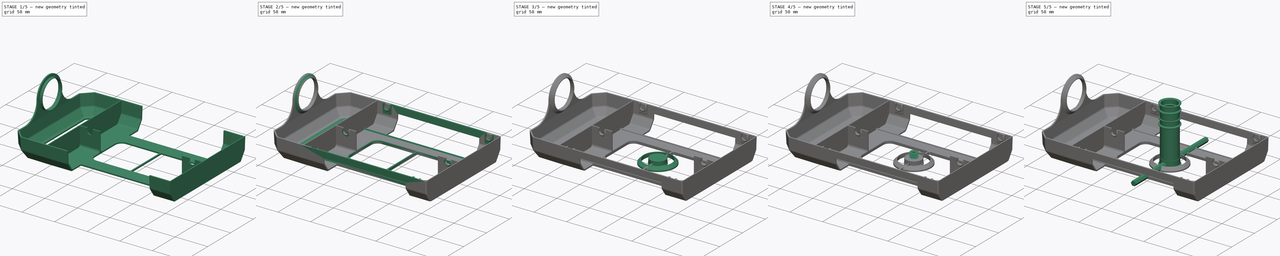
[diagram: build sequence overview — one tinted view per stage of 5, left to right]
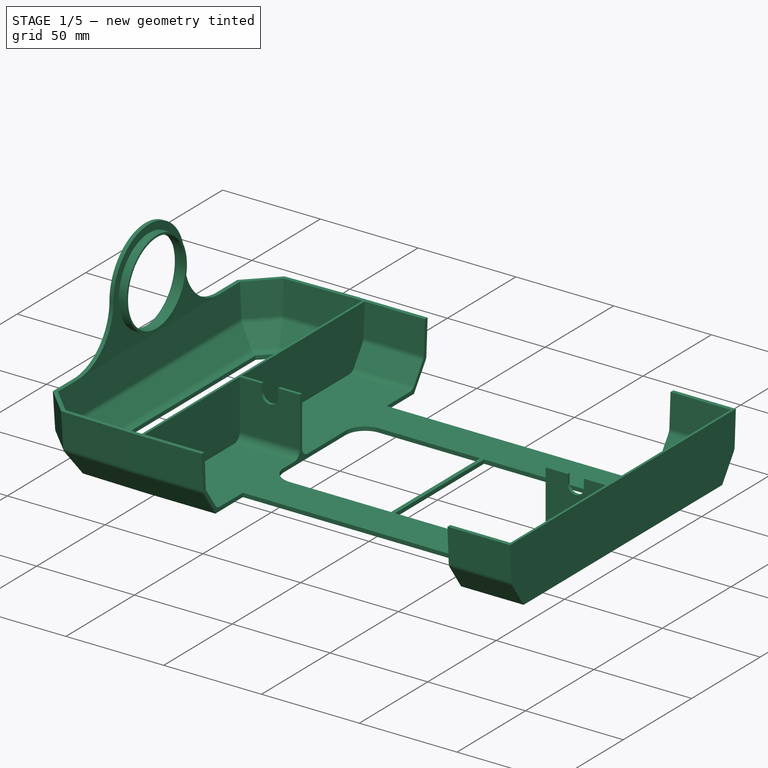
[diagram: stage 1 of 5 — iso view after this stage's code; geometry added in this stage tinted green]
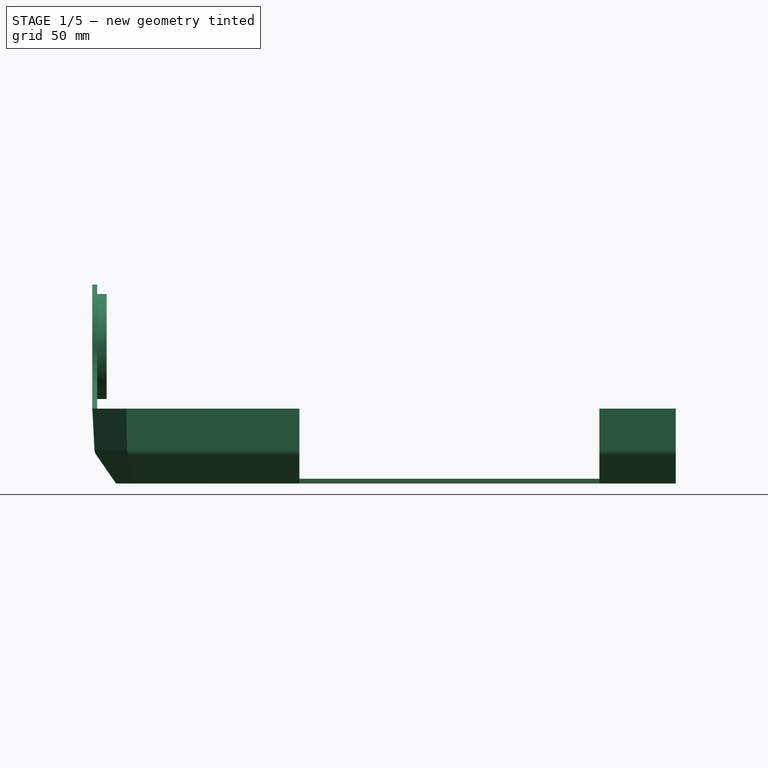
[diagram: stage 1 of 5 — front view after this stage's code; geometry added in this stage tinted green]
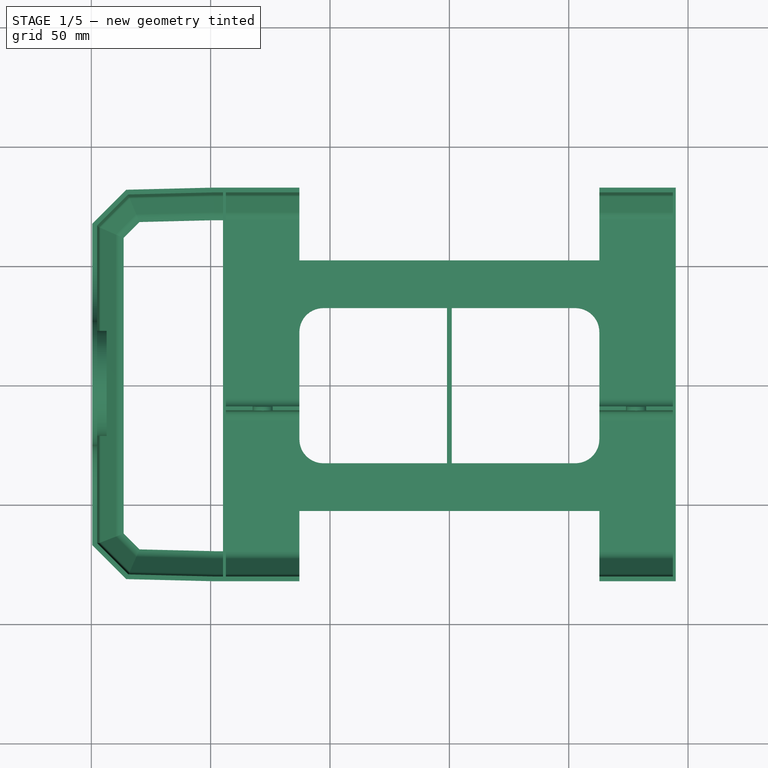
[diagram: stage 1 of 5 — top view after this stage's code; geometry added in this stage tinted green]
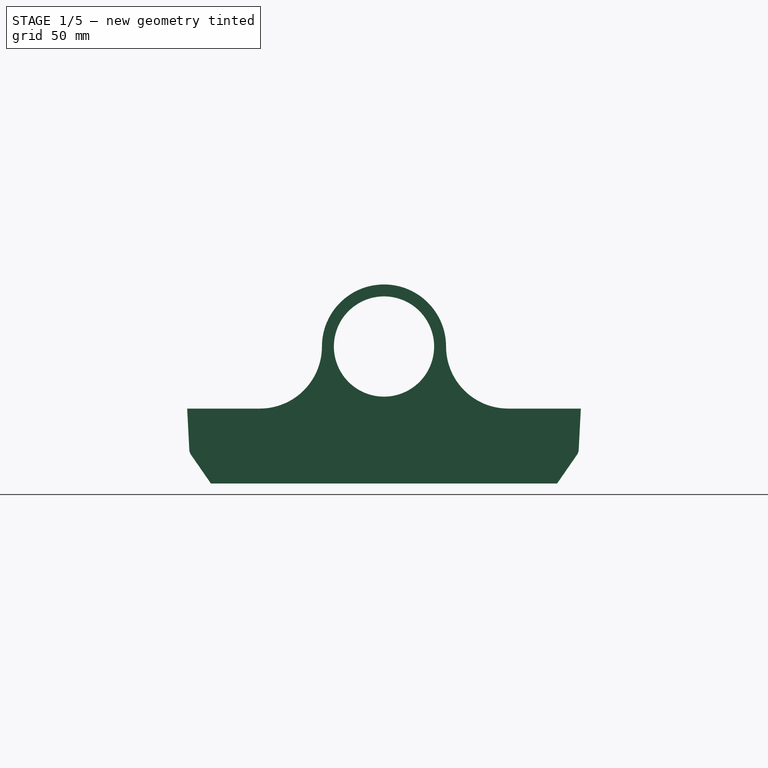
[diagram: stage 1 of 5 — right view after this stage's code; geometry added in this stage tinted green]
FCSTD DOCUMENT  (FreeCAD 1.1R44874 (Git))
Label: DryBox_365
License: All rights reserved
LicenseURL: https://en.wikipedia.org/wiki/All_rights_reserved
objects: Sketcher::SketchObject×33, PartDesign::Pad×23, PartDesign::Chamfer×16, PartDesign::Body×13, App::Point×13, Part::Part2DObjectPython×4, Part::Helix×4, PartDesign::Pocket×3, PartDesign::SubtractivePipe×3, Spreadsheet::Sheet×2, PartDesign::ShapeBinder×2, PartDesign::Revolution×2, PartDesign::PolarPattern×2, PartDesign::AdditivePipe×2, PartDesign::FeatureBase×2, PartDesign::Fillet×2, Part::DatumPlane×1
note: 250 computed .brp shape members not serialized (recipe doc carries the construction recipe); baked Part::Feature solids carry a one-line shape summary decoded from their .brp

FEATURE [PartDesign::Body] Body003  label="BearingTest"
  AllowCompound = false
  Group = -> [Sketch008,Pad002,Chamfer003]
  Origin = -> Origin003
  Tip = -> Chamfer003
FEATURE [Spreadsheet::Sheet] Spreadsheet  label="Literals"
  cells = B2='RollerRadius; C2(RollerRadius)==12.6 mm; B3='RollerEdge; C3(RollerEdge)==2 mm; B4='RollerOuterDiameter; C4(RollerOuterDiameter)==(RollerRadius + RollerEdge) * 2; B5='RollerAxisHeight; C5(RollerAxisHeight)==25 mm; B6='RollerAxisRadius; C6(RollerAxisRadius)==4 mm; B7='RollerSeparation; C7(RollerSeparation)==0.8 mm; B8='BearingRadius; C8(BearingRadius)==11.15 mm; B9='BearingThickness; C9(BearingThickness)==7 mm; B10='BaseThickness; C10(BaseThickness)==2 mm; B11='SeparatorOffset; C11(SeparatorOffset)==10 mm
FEATURE [PartDesign::ShapeBinder] ShapeBinder002
  Placement = pos=(0,0,0) rot=(1,0,0;1.5708rad)
  Support = -> [Sketch005]
  TraceSupport = false
FEATURE [PartDesign::ShapeBinder] ShapeBinder003
  Placement = pos=(0,0,0) rot=(0.57735,0.57735,0.57735;2.0944rad)
  Support = -> [Sketch007]
  TraceSupport = false
FEATURE [Sketcher::SketchObject] Sketch009  label="SHF_Base"
  ArcFitTolerance = 1e-06
  AttachmentSupport = -> [XY_Plane004]
  ExternalGeometry = -> [ShapeBinder002,ShapeBinder003]
  ExternalTypes = [0]
  FullyConstrained = true
  MakeInternals = false
  MapMode = 5
  _ExternalGeoVersion = 0
  sketch-geometry (22):
    g0: LineSegment StartX=-93.6161 StartY=52.5 StartZ=0 EndX=-93.6161 EndY=-52.5 EndZ=0
    g1: LineSegment StartX=-93.6161 StartY=-52.5 StartZ=0 EndX=93.6161 EndY=-52.5 EndZ=0
    g2: LineSegment StartX=93.6161 StartY=-52.5 StartZ=0 EndX=93.6161 EndY=52.5 EndZ=0
    g3: LineSegment StartX=93.6161 StartY=52.5 StartZ=0 EndX=-93.6161 EndY=52.5 EndZ=0
    g4: LineSegment [constr] StartX=0 StartY=72.5 StartZ=0 EndX=0 EndY=52.5 EndZ=0
    g5: LineSegment [constr] StartX=0 StartY=52.5 StartZ=0 EndX=0 EndY=32.5 EndZ=0
    g6: LineSegment [constr] StartX=0 StartY=-72.5 StartZ=0 EndX=0 EndY=-52.5 EndZ=0
    g7: LineSegment [constr] StartX=0 StartY=-52.5 StartZ=0 EndX=0 EndY=-32.5 EndZ=0
    g8: LineSegment StartX=-62.8161 StartY=22.5 StartZ=0 EndX=-62.8161 EndY=-22.5 EndZ=0
    g9: LineSegment StartX=-52.8161 StartY=-32.5 StartZ=0 EndX=-1 EndY=-32.5 EndZ=0
    g10: LineSegment StartX=62.8161 StartY=-22.5 StartZ=0 EndX=62.8161 EndY=22.5 EndZ=0
    g11: LineSegment StartX=52.8161 StartY=32.5 StartZ=0 EndX=1 EndY=32.5 EndZ=0
    g12: ArcOfCircle CenterX=-52.8161 CenterY=22.5 CenterZ=0 NormalX=0 NormalY=0 NormalZ=1 AngleXU=0 Radius=10 StartAngle=1.5708 EndAngle=3.14159
    g13: ArcOfCircle CenterX=-52.8161 CenterY=-22.5 CenterZ=0 NormalX=0 NormalY=0 NormalZ=1 AngleXU=0 Radius=10 StartAngle=3.14159 EndAngle=4.71239
    g14: ArcOfCircle CenterX=52.8161 CenterY=-22.5 CenterZ=0 NormalX=0 NormalY=0 NormalZ=1 AngleXU=0 Radius=10 StartAngle=4.71239 EndAngle=6.28319
    g15: ArcOfCircle CenterX=52.8161 CenterY=22.5 CenterZ=0 NormalX=0 NormalY=0 NormalZ=1 AngleXU=0 Radius=10 StartAngle=2e-16 EndAngle=1.5708
    g16: LineSegment StartX=-1 StartY=32.5 StartZ=0 EndX=-1 EndY=-32.5 EndZ=0
    g17: LineSegment StartX=1 StartY=32.5 StartZ=0 EndX=1 EndY=-32.5 EndZ=0
    g18: LineSegment StartX=-1 StartY=32.5 StartZ=0 EndX=-52.8161 EndY=32.5 EndZ=0
    g19: LineSegment [constr] StartX=1 StartY=32.5 StartZ=0 EndX=-1 EndY=32.5 EndZ=0
    g20: LineSegment StartX=1 StartY=-32.5 StartZ=0 EndX=52.8161 EndY=-32.5 EndZ=0
    g21: LineSegment [constr] StartX=-1 StartY=-32.5 StartZ=0 EndX=1 EndY=-32.5 EndZ=0
  constraints (59):
    c: Coincident(g0,g1)
    c: Coincident(g1,g2)
    c: Coincident(g2,g3)
    c: Coincident(g3,g0)
    c: Vertical(g0)
    c: Vertical(g2)
    c: Horizontal(g1)
    c: Horizontal(g3)
    c: PointOnObject(g-3,g0)
    c: PointOnObject(g-4,g2)
    c: DistanceY(g0,g-5) = 20
    c: Coincident(g4,g-5)
    c: PointOnObject(g4,g3)
    c: Coincident(g5,g4)
    c: Coincident(g6,g-5)
    c: PointOnObject(g6,g1)
    c: Coincident(g7,g6)
    c: Equal(g4,g5)
    c: Equal(g5,g7)
    c: Equal(g7,g6)
    c: PointOnObject(g4,g-5)
    c: PointOnObject(g5,g-5)
    c: PointOnObject(g7,g-5)
    c: PointOnObject(g6,g-5)
    c: Tangent(g8,g12) = -1.5708
    c: Tangent(g8,g13) = -1.5708
    c: Tangent(g9,g13) = -1.5708
    c: Tangent(g10,g14) = -1.5708
    c: Tangent(g10,g15) = -1.5708
    c: Tangent(g11,g15) = -1.5708
    c: Vertical(g8)
    c: Vertical(g10)
    c: Equal(g12,g13)
    c: Equal(g13,g14)
    c: Equal(g14,g15)
    c: Radius(g12) = 10
    c: PointOnObject(g-6,g8)
    c: PointOnObject(g-7,g10)
    c: Vertical(g16)
    c: Vertical(g17)
    c: Symmetric(g16,g17,g5)
    c: Horizontal(g18)
    c: Coincident(g19,g18)
    c: Horizontal(g11)
    c: Horizontal(g19)
    c: Coincident(g11,g19)
    c: Horizontal(g20)
    c: Coincident(g21,g20)
    c: Horizontal(g9)
    c: Horizontal(g21)
    c: Coincident(g9,g21)
    c: Coincident(g9,g16)
    c: Coincident(g17,g20)
    c: Coincident(g18,g16)
    c: Coincident(g17,g11)
    c: DistanceX(g19,g19) = 2
    c: Tangent(g12,g18) = -1.5708
    c: Tangent(g14,g20) = -1.5708
    c: PointOnObject(g7,g21)
FEATURE [PartDesign::Pad] Pad003  label="SHF_Base_"
  Direction = (0,0,1)
  Length = 2
  Length2 = 10
  Profile = -> Sketch009
  ReferenceAxis = -> Sketch009 [N_Axis]
  Refine = true
  SideType = 0
  Suppressed = false
  Type = 0
  Type2 = 0
  expr: Length = <<Literals>>.BaseThickness
FEATURE [Sketcher::SketchObject] Sketch010  label="SHF_RightWing"
  ArcFitTolerance = 1e-06
  AttachmentOffset = pos=(0,0,93.6161) rot=(0,0,1;0rad)
  AttachmentSupport = -> [YZ_Plane004]
  ExternalGeometry = -> [ShapeBinder003]
  ExternalTypes = [0]
  FullyConstrained = true
  MakeInternals = false
  MapMode = 5
  Placement = pos=(93.6161,0,0) rot=(0.57735,0.57735,0.57735;2.0944rad)
  _ExternalGeoVersion = 0
  expr: .AttachmentOffset.Base.z = <<SHT_XZ>>.Constraints.BaseWidth / 2
  sketch-geometry (12):
    g0: LineSegment StartX=-80.4616 StartY=31.4 StartZ=0 EndX=-82.4643 EndY=31.4 EndZ=0
    g1: LineSegment StartX=-82.4643 StartY=31.4 StartZ=0 EndX=-81.5 EndY=13 EndZ=0
    g2: LineSegment StartX=-81.5 StartY=13 StartZ=0 EndX=-72.5 EndY=0 EndZ=0
    g3: LineSegment StartX=-72.5 StartY=0 StartZ=0 EndX=72.5 EndY=0 EndZ=0
    g4: LineSegment StartX=72.5 StartY=0 StartZ=0 EndX=81.5 EndY=13 EndZ=0
    g5: LineSegment StartX=81.5 StartY=13 StartZ=0 EndX=82.4643 EndY=31.4 EndZ=0
    g6: LineSegment StartX=82.4643 StartY=31.4 StartZ=0 EndX=80.4616 EndY=31.4 EndZ=0
    g7: LineSegment StartX=80.4616 StartY=31.4 StartZ=0 EndX=79.5325 EndY=13.6716 EndZ=0
    g8: LineSegment StartX=79.5325 StartY=13.6716 StartZ=0 EndX=71.4521 EndY=2 EndZ=0
    g9: LineSegment StartX=71.4521 StartY=2 StartZ=0 EndX=-71.4521 EndY=2 EndZ=0
    g10: LineSegment StartX=-71.4521 StartY=2 StartZ=0 EndX=-79.5325 EndY=13.6716 EndZ=0
    g11: LineSegment StartX=-79.5325 StartY=13.6716 StartZ=0 EndX=-80.4616 EndY=31.4 EndZ=0
  constraints (24):
    c: Coincident(g-4,g0)
    c: Coincident(g0,g-3)
    c: Coincident(g0,g1)
    c: Coincident(g1,g-3)
    c: Coincident(g1,g2)
    c: Coincident(g2,g-6)
    c: Coincident(g2,g3)
    c: Coincident(g3,g-6)
    c: Coincident(g3,g4)
    c: Coincident(g4,g-7)
    c: Coincident(g4,g5)
    c: Coincident(g5,g-7)
    c: Coincident(g5,g6)
    c: Coincident(g6,g-8)
    c: Coincident(g6,g7)
    c: Coincident(g7,g-8)
    c: Coincident(g7,g8)
    c: Coincident(g8,g-5)
    c: Coincident(g8,g9)
    c: Coincident(g9,g-5)
    c: Coincident(g9,g10)
    c: Coincident(g10,g-4)
    c: Coincident(g10,g11)
    c: Coincident(g11,g0)
FEATURE [PartDesign::Pad] Pad004  label="SHF_RightWing_"
  BaseFeature = -> Pad003
  Direction = (1,0,0)
  Length = 30.8
  Length2 = 10
  Profile = -> Sketch010
  ReferenceAxis = -> Sketch010 [N_Axis]
  Refine = true
  Reversed = true
  SideType = 0
  Suppressed = false
  Type = 0
  Type2 = 0
  expr: Length = <<SHT_XZ>>.Constraints.WingWidth
FEATURE [PartDesign::Body] Body007  label="RollerRear"
  AllowCompound = false
  Group = -> [Sketch026,Revolution001,Chamfer007]
  Origin = -> Origin007
  Tip = -> Chamfer007
FEATURE [Sketcher::SketchObject] Sketch027  label="SHF_SideBrace"
  ArcFitTolerance = 1e-06
  AttachmentSupport = -> [YZ_Plane004]
  ExternalGeometry = -> [ShapeBinder003]
  ExternalTypes = [0]
  FullyConstrained = true
  MakeInternals = false
  MapMode = 5
  Placement = pos=(0,0,0) rot=(0.57735,0.57735,0.57735;2.0944rad)
  _ExternalGeoVersion = 0
  sketch-geometry (8):
    g0: LineSegment StartX=80.4616 StartY=31.4 StartZ=0 EndX=82.4643 EndY=31.4 EndZ=0
    g1: LineSegment StartX=82.4643 StartY=31.4 StartZ=0 EndX=81.9409 EndY=21.4137 EndZ=0
    g2: LineSegment StartX=81.9409 StartY=21.4137 StartZ=0 EndX=79.9382 EndY=21.4137 EndZ=0
    g3: LineSegment StartX=79.9382 StartY=21.4137 StartZ=0 EndX=80.4616 EndY=31.4 EndZ=0
    g4: LineSegment StartX=-82.4643 StartY=31.4 StartZ=0 EndX=-80.4616 EndY=31.4 EndZ=0
    g5: LineSegment StartX=-80.4616 StartY=31.4 StartZ=0 EndX=-79.9382 EndY=21.4137 EndZ=0
    g6: LineSegment StartX=-79.9382 StartY=21.4137 StartZ=0 EndX=-81.9409 EndY=21.4137 EndZ=0
    g7: LineSegment StartX=-81.9409 StartY=21.4137 StartZ=0 EndX=-82.4643 EndY=31.4 EndZ=0
  constraints (20):
    c: Coincident(g1,g0)
    c: Coincident(g2,g1)
    c: Horizontal(g2)
    c: Coincident(g3,g2)
    c: Coincident(g3,g0)
    c: Coincident(g4,g5)
    c: Coincident(g5,g6)
    c: Horizontal(g6)
    c: Coincident(g6,g7)
    c: Coincident(g7,g4)
    c: Distance(g7) = 10
    c: Equal(g5,g3)
    c: PointOnObject(g5,g-6)
    c: PointOnObject(g6,g-5)
    c: Coincident(g4,g-5)
    c: Coincident(g4,g-6)
    c: PointOnObject(g2,g-3)
    c: PointOnObject(g1,g-4)
    c: Coincident(g0,g-4)
    c: Coincident(g-3,g0)
FEATURE [Sketcher::SketchObject] Sketch029  label="SHF_LeftWing"
  ArcFitTolerance = 1e-06
  AttachmentOffset = pos=(0,0,-93.6161) rot=(0,0,1;0rad)
  AttachmentSupport = -> [YZ_Plane004]
  ExternalGeometry = -> [ShapeBinder003]
  ExternalTypes = [0]
  FullyConstrained = true
  MakeInternals = false
  MapMode = 5
  Placement = pos=(-93.6161,0,0) rot=(0.57735,0.57735,0.57735;2.0944rad)
  _ExternalGeoVersion = 0
  expr: .AttachmentOffset.Base.z = -<<SHT_XZ>>.Constraints.BaseWidth / 2
  sketch-geometry (12):
    g0: LineSegment StartX=-80.4616 StartY=31.4 StartZ=0 EndX=-82.4643 EndY=31.4 EndZ=0
    g1: LineSegment StartX=-82.4643 StartY=31.4 StartZ=0 EndX=-81.5 EndY=13 EndZ=0
    g2: LineSegment StartX=-81.5 StartY=13 StartZ=0 EndX=-72.5 EndY=0 EndZ=0
    g3: LineSegment StartX=-72.5 StartY=0 StartZ=0 EndX=72.5 EndY=0 EndZ=0
    g4: LineSegment StartX=72.5 StartY=0 StartZ=0 EndX=81.5 EndY=13 EndZ=0
    g5: LineSegment StartX=81.5 StartY=13 StartZ=0 EndX=82.4643 EndY=31.4 EndZ=0
    g6: LineSegment StartX=82.4643 StartY=31.4 StartZ=0 EndX=80.4616 EndY=31.4 EndZ=0
    g7: LineSegment StartX=80.4616 StartY=31.4 StartZ=0 EndX=79.5325 EndY=13.6716 EndZ=0
    g8: LineSegment StartX=79.5325 StartY=13.6716 StartZ=0 EndX=71.4521 EndY=2 EndZ=0
    g9: LineSegment StartX=71.4521 StartY=2 StartZ=0 EndX=-71.4521 EndY=2 EndZ=0
    g10: LineSegment StartX=-71.4521 StartY=2 StartZ=0 EndX=-79.5325 EndY=13.6716 EndZ=0
    g11: LineSegment StartX=-79.5325 StartY=13.6716 StartZ=0 EndX=-80.4616 EndY=31.4 EndZ=0
  constraints (24):
    c: Coincident(g-4,g0)
    c: Coincident(g0,g-3)
    c: Coincident(g0,g1)
    c: Coincident(g1,g-3)
    c: Coincident(g1,g2)
    c: Coincident(g2,g-6)
    c: Coincident(g2,g3)
    c: Coincident(g3,g-6)
    c: Coincident(g3,g4)
    c: Coincident(g4,g-7)
    c: Coincident(g4,g5)
    c: Coincident(g5,g-7)
    c: Coincident(g5,g6)
    c: Coincident(g6,g-8)
    c: Coincident(g6,g7)
    c: Coincident(g7,g-8)
    c: Coincident(g7,g8)
    c: Coincident(g8,g-5)
    c: Coincident(g8,g9)
    c: Coincident(g9,g-5)
    c: Coincident(g9,g10)
    c: Coincident(g10,g-4)
    c: Coincident(g10,g11)
    c: Coincident(g11,g0)
FEATURE [PartDesign::Pad] Pad019  label="SHF_LeftWing_"
  BaseFeature = -> Pad004
  Direction = (1,0,0)
  Length = 30.8
  Length2 = 10
  Profile = -> Sketch029
  ReferenceAxis = -> Sketch029 [N_Axis]
  Refine = true
  SideType = 0
  Suppressed = false
  Type = 0
  Type2 = 0
  expr: Length = <<SHF_RightWing_>>.Length
FEATURE [PartDesign::Pad] Pad015  label="SHF_MiddleWing_"
  BaseFeature = -> Pad019
  Direction = (0,-1,2e-16)
  Length = 1.6
  Length2 = 10
  Profile = -> Sketch022
  ReferenceAxis = -> Sketch022 [N_Axis]
  SideType = 2
  Suppressed = false
  Type = 0
  Type2 = 0
FEATURE [PartDesign::Body] Body015  label="BearingTool"
  AllowCompound = false
  Group = -> [Sketch044,Pad028]
  Origin = -> Origin015
  Tip = -> Pad028
FEATURE [App::Point] Origin016  label="Origin"
  Role = Origin
FEATURE [App::Point] Origin017  label="Origin"
  Role = Origin
FEATURE [App::Point] Origin018  label="Origin"
  Role = Origin
FEATURE [App::Point] Origin019  label="Origin"
  Role = Origin
FEATURE [App::Point] Origin020  label="Origin"
  Role = Origin
FEATURE [App::Point] Origin021  label="Origin"
  Role = Origin
FEATURE [App::Point] Origin025  label="Origin"
  Role = Origin
FEATURE [App::Point] Origin026  label="Origin"
  Role = Origin
FEATURE [App::Point] Origin027  label="Origin"
  Role = Origin
FEATURE [App::Point] Origin028  label="Origin"
  Role = Origin
FEATURE [App::Point] Origin029  label="Origin"
  Role = Origin
FEATURE [App::Point] Origin030  label="Origin"
  Role = Origin
FEATURE [Sketcher::SketchObject] Sketch045  label="SHF_SilicaTrayWalls"
  ArcFitTolerance = 1e-06
  AttachmentOffset = pos=(0,0,-93.6161) rot=(0,0,1;0rad)
  AttachmentSupport = -> [YZ_Plane004]
  ExternalGeometry = -> [ShapeBinder003]
  ExternalTypes = [0,0,0,0,0,0,0]
  FullyConstrained = true
  MakeInternals = false
  MapMode = 5
  Placement = pos=(-93.6161,0,0) rot=(0.57735,0.57735,0.57735;2.0944rad)
  _ExternalGeoVersion = 0
  expr: .AttachmentOffset.Base.z = -<<SHT_XZ>>.Constraints.BaseWidth / 2
  expr: .Constraints.FilletRadius = <<Fillet>>.Radius
  sketch-geometry (9):
    g0: LineSegment StartX=-69.3563 StartY=2 StartZ=0 EndX=-69.3563 EndY=0 EndZ=0
    g1: LineSegment StartX=-69.3563 StartY=0 StartZ=0 EndX=-72.5 EndY=0 EndZ=0
    g2: LineSegment StartX=-82.4643 StartY=31.4 StartZ=0 EndX=-81.5594 EndY=14.1339 EndZ=0
    g3: LineSegment StartX=-80.4616 StartY=31.4 StartZ=0 EndX=-79.5919 EndY=14.8055 EndZ=0
    g4: LineSegment StartX=-72.6451 StartY=3.72316 StartZ=0 EndX=-78.8861 EndY=12.7381 EndZ=0
    g5: LineSegment StartX=-72.5 StartY=0 StartZ=0 EndX=-80.8537 EndY=12.0664 EndZ=0
    g6: ArcOfCircle CenterX=-77.5649 CenterY=14.3433 CenterZ=0 NormalX=0 NormalY=0 NormalZ=1 AngleXU=0 Radius=4 StartAngle=3.19395 EndAngle=3.74714
    g7: ArcOfCircle CenterX=-75.5974 CenterY=15.0149 CenterZ=0 NormalX=0 NormalY=0 NormalZ=1 AngleXU=0 Radius=4 StartAngle=3.19395 EndAngle=3.74714
    g8: ArcOfCircle CenterX=-69.3563 CenterY=6 CenterZ=0 NormalX=0 NormalY=0 NormalZ=1 AngleXU=0 Radius=4 StartAngle=3.74714 EndAngle=4.71239
  constraints (23):
    c: Vertical(g0)
    c: Coincident(g0,g1)
    c: Horizontal(g1)
    c: Coincident(g5,g1)
    c: Radius(g7) = 4  'FilletRadius'
    c: Equal(g7,g6)
    c: Tangent(g6,g2) = -1.5708
    c: Tangent(g6,g5) = 1.5708
    c: Tangent(g7,g3) = -1.5708
    c: Tangent(g7,g4) = 1.5708
    c: Equal(g6,g8)
    c: Tangent(g8,g4) = 1.5708
    c: Coincident(g0,g8)
    c: Tangent(g8,g-9) = -1.5708
    c: PointOnObject(g4,g-7)
    c: Coincident(g-8,g1)
    c: PointOnObject(g5,g-5)
    c: PointOnObject(g4,g-7)
    c: PointOnObject(g3,g-6)
    c: PointOnObject(g2,g-4)
    c: Coincident(g2,g-4)
    c: Coincident(g3,g-6)
    c: DistanceX(g2,g1) = 9.9643  'Overhang'
FEATURE [Sketcher::SketchObject] Sketch046  label="SHF_STWPath"
  ArcFitTolerance = 1e-06
  AttachmentSupport = -> [XY_Plane004]
  ExternalGeometry = -> [Sketch045,ShapeBinder003]
  ExternalTypes = [0,0]
  FullyConstrained = true
  MakeInternals = false
  MapMode = 5
  _ExternalGeoVersion = 0
  sketch-geometry (10):
    g0: LineSegment StartX=-131.131 StartY=71.707 StartZ=0 EndX=-139.616 EndY=63.2217 EndZ=0
    g1: LineSegment StartX=-139.616 StartY=63.2217 StartZ=0 EndX=-139.616 EndY=-63.2217 EndZ=0
    g2: LineSegment StartX=-139.616 StartY=-63.2217 StartZ=0 EndX=-131.131 EndY=-71.707 EndZ=0
    g3: LineSegment [constr] StartX=-98.6161 StartY=72.5 StartZ=0 EndX=-139.616 EndY=72.5 EndZ=0
    g4: LineSegment [constr] StartX=-131.131 StartY=71.707 StartZ=0 EndX=-139.616 EndY=71.5 EndZ=0
    g5: LineSegment StartX=-93.6161 StartY=72.5 StartZ=0 EndX=-98.6161 EndY=72.5 EndZ=0
    g6: LineSegment StartX=-98.6161 StartY=72.5 StartZ=0 EndX=-131.131 EndY=71.707 EndZ=0
    g7: LineSegment StartX=-131.131 StartY=-71.707 StartZ=0 EndX=-98.6161 EndY=-72.5 EndZ=0
    g8: LineSegment StartX=-98.6161 StartY=-72.5 StartZ=0 EndX=-93.6161 EndY=-72.5 EndZ=0
    g9: LineSegment [constr] StartX=-93.6161 StartY=72.5 StartZ=0 EndX=-93.6161 EndY=-72.5 EndZ=0
  constraints (30):
    c: Coincident(g0,g6)
    c: Coincident(g1,g0)
    c: Vertical(g1)
    c: Coincident(g2,g1)
    c: Coincident(g7,g2)
    c: Equal(g2,g0)
    c: Perpendicular(g0,g2)
    c: Distance(g0) = 12
    c: DistanceX(g0,g5) = 46  'TrayLength'
    c: Horizontal(g3)
    c: Angle(g3,g0) = 0.785398
    c: PointOnObject(g3,g1)
    c: Coincident(g4,g6)
    c: PointOnObject(g4,g1)
    c: DistanceY(g4,g3) = 1
    c: Coincident(g5,g6)
    c: Parallel(g4,g6)
    c: Coincident(g7,g8)
    c: Equal(g8,g5)
    c: Horizontal(g8)
    c: Horizontal(g5)
    c: Coincident(g3,g5)
    c: DistanceX(g5,g5) = 5
    c: Equal(g7,g6)
    c: Coincident(g8,g-3)
    c: PointOnObject(g5,g-3)
    c: PointOnObject(g-4,g5)
    c: Coincident(g9,g5)
    c: Coincident(g9,g8)
    c: Angle(g6,g9) = 1.54641
FEATURE [Sketcher::SketchObject] Sketch047  label="SHF_SilicaTrayBottom"
  ArcFitTolerance = 1e-06
  AttachmentSupport = -> [Origin004]
  ExternalGeometry = -> [Sketch046]
  ExternalTypes = [0,0,0,0,0,0,0]
  FullyConstrained = true
  MakeInternals = false
  MapMode = 5
  _ExternalGeoVersion = 1
  sketch-geometry (1):
    g0: LineSegment StartX=-93.6161 StartY=-72.5 StartZ=0 EndX=-93.6161 EndY=72.5 EndZ=0
  constraints (2):
    c: Coincident(g0,g-9)
    c: Coincident(g0,g-3)
FEATURE [Sketcher::SketchObject] Sketch048  label="SHF_SilicaTraySeparator"
  ArcFitTolerance = 1e-06
  AttachmentOffset = pos=(0,0,-93.6161) rot=(0,0,1;0rad)
  AttachmentSupport = -> [Origin004]
  ExternalGeometry = -> [ShapeBinder003]
  ExternalTypes = [0,0,0,0,0,0,0,0]
  FullyConstrained = true
  MakeInternals = false
  MapMode = 5
  Placement = pos=(-93.6161,0,0) rot=(0.57735,0.57735,0.57735;2.0944rad)
  _ExternalGeoVersion = 1
  expr: .AttachmentOffset.Base.z = -<<SHT_XZ>>.Constraints.BaseWidth / 2
FEATURE [PartDesign::Pad] Pad030  label="SHF_SilicaTraySeparator_"
  BaseFeature = -> Pad015
  Direction = (1,0,0)
  Length = 1.2
  Length2 = 10
  Profile = -> Sketch048
  ReferenceAxis = -> Sketch048 [N_Axis]
  Refine = true
  Reversed = true
  SideType = 0
  Suppressed = false
  Type = 0
  Type2 = 0
FEATURE [Part::DatumPlane] DatumPlane
  AttachmentOffset = pos=(0,0,53.9643) rot=(0,0,1;0rad)
  AttachmentSupport = -> [ShapeBinder002]
  MapMode = 7
  Placement = pos=(-147.58,0,0) rot=(0.57735,-0.57735,-0.57735;2.0944rad)
  expr: .AttachmentOffset.Base.z = <<SHF_STWPath>>.Constraints.TrayLength + <<SHF_SilicaTrayWalls>>.Constraints.Overhang - <<Literals>>.BaseThickness
FEATURE [Sketcher::SketchObject] Sketch049  label="HumHolder"
  ArcFitTolerance = 1e-06
  AttachmentSupport = -> [DatumPlane]
  ExternalGeometry = -> [ShapeBinder003]
  ExternalTypes = [0]
  FullyConstrained = true
  MakeInternals = false
  MapMode = 5
  Placement = pos=(-147.58,0,0) rot=(0.57735,-0.57735,-0.57735;2.0944rad)
  _ExternalGeoVersion = 1
  sketch-geometry (6):
    g0: ArcOfCircle CenterX=-52 CenterY=57.4 CenterZ=0 NormalX=0 NormalY=0 NormalZ=1 AngleXU=0 Radius=26 StartAngle=4.71239 EndAngle=6.28319
    g1: ArcOfCircle CenterX=0 CenterY=57.4 CenterZ=0 NormalX=0 NormalY=0 NormalZ=1 AngleXU=0 Radius=26 StartAngle=1e-16 EndAngle=3.14159
    g2: ArcOfCircle CenterX=52 CenterY=57.4 CenterZ=0 NormalX=0 NormalY=0 NormalZ=1 AngleXU=0 Radius=26 StartAngle=3.14159 EndAngle=4.71239
    g3: LineSegment [constr] StartX=-52 StartY=57.4 StartZ=0 EndX=52 EndY=57.4 EndZ=0
    g4: LineSegment StartX=-52 StartY=31.4 StartZ=0 EndX=52 EndY=31.4 EndZ=0
    g5: Circle CenterX=0 CenterY=57.4 CenterZ=0 NormalX=0 NormalY=0 NormalZ=1 AngleXU=0 Radius=21
  constraints (16):
    c: Equal(g0,g1)
    c: Equal(g1,g2)
    c: Coincident(g3,g0)
    c: Coincident(g0,g1)
    c: Coincident(g2,g3)
    c: PointOnObject(g1,g3)
    c: PointOnObject(g0,g3)
    c: Coincident(g1,g2)
    c: PointOnObject(g1,g3)
    c: Tangent(g0,g-3) = 1.5708
    c: Tangent(g4,g0) = -1.5708
    c: Coincident(g5,g1)
    c: Diameter(g5) = 42  'InnerDia'
    c: PointOnObject(g1,g-2)
    c: Diameter(g1) = 52  'OuterDia'
    c: Tangent(g2,g4) = -1.5708
FEATURE [Sketcher::SketchObject] Sketch050  label="SHF_HumHolderRing"
  ArcFitTolerance = 1e-06
  AttachmentSupport = -> [DatumPlane]
  ExternalGeometry = -> [Sketch049]
  ExternalTypes = [0]
  FullyConstrained = true
  MakeInternals = false
  MapMode = 5
  Placement = pos=(-147.58,0,0) rot=(0.57735,-0.57735,-0.57735;2.0944rad)
  _ExternalGeoVersion = 1
  sketch-geometry (2):
    g0: Circle CenterX=0 CenterY=57.4 CenterZ=0 NormalX=0 NormalY=0 NormalZ=1 AngleXU=0 Radius=22
    g1: LineSegment [constr] StartX=21 StartY=57.4 StartZ=0 EndX=22 EndY=57.4 EndZ=0
  constraints (6):
    c: Coincident(g0,g-3)
    c: PointOnObject(g1,g-3)
    c: PointOnObject(g1,g0)
    c: Horizontal(g1)
    c: PointOnObject(g0,g1)
    c: DistanceX(g1,g1) = 1  'RingWidth'
FEATURE [Sketcher::SketchObject] Sketch051  label="SHF_End"
  ArcFitTolerance = 1e-06
  AttachmentOffset = pos=(0,0,93.6161) rot=(0,0,1;0rad)
  AttachmentSupport = -> [Origin004]
  ExternalGeometry = -> [ShapeBinder003]
  ExternalTypes = [0,0,0,0,0,0,0,0]
  FullyConstrained = true
  MakeInternals = false
  MapMode = 5
  Placement = pos=(93.6161,0,0) rot=(0.57735,0.57735,0.57735;2.0944rad)
  _ExternalGeoVersion = 1
  expr: .AttachmentOffset.Base.z = <<SHT_XZ>>.Constraints.BaseWidth / 2
FEATURE [PartDesign::Pad] Pad033  label="SHF_End_"
  BaseFeature = -> Pad030
  Direction = (1,0,0)
  Length = 1.2
  Length2 = 10
  Profile = -> Sketch051
  ReferenceAxis = -> Sketch051 [N_Axis]
  Refine = true
  SideType = 0
  Suppressed = false
  Type = 0
  Type2 = 0
FEATURE [PartDesign::Fillet] Fillet
  Base = -> Pad033 [Edge82,Edge45,Edge26,Edge69,Edge166,Edge40,Edge30,Edge94,Edge77,Edge53,Edge1,Edge5,Edge128,Edge42,Edge32,Edge165]
  BaseFeature = -> Pad033
  Radius = 4
  Refine = true
  SupportTransform = false
  Suppressed = false
  UseAllEdges = false
FEATURE [PartDesign::AdditivePipe] AdditivePipe002  label="SHF_SilicaTrayWalls_"
  AuxiliaryCurvilinear = true
  AuxiliarySpineTangent = false
  BaseFeature = -> Fillet
  Binormal = (0,0,0)
  Mode = 0
  Profile = -> Sketch045
  Refine = true
  Spine = -> Sketch046
  SpineTangent = false
  Suppressed = false
  Transformation = 0
  Transition = 1
FEATURE [PartDesign::Pad] Pad031  label="HumHolder_"
  BaseFeature = -> AdditivePipe002
  Direction = (-1,0,0)
  Length = 2
  Length2 = 10
  Profile = -> Sketch049
  ReferenceAxis = -> Sketch049 [N_Axis]
  Refine = true
  SideType = 0
  Suppressed = false
  Type = 0
  Type2 = 0
  expr: Length = Spreadsheet.BaseThickness
FEATURE [PartDesign::Pad] Pad032  label="SHF_HumHolderRing_"
  BaseFeature = -> Pad031
  Direction = (-1,0,0)
  Length = 4
  Length2 = 10
  Profile = -> Sketch050
  ReferenceAxis = -> Sketch050 [N_Axis]
  Refine = true
  Reversed = true
  SideType = 0
  Suppressed = false
  Type = 0
  Type2 = 0
  expr: Length = (<<HumHolder>>.Constraints.OuterDia - <<HumHolder>>.Constraints.InnerDia) / 2 - <<SHF_HumHolderRing>>.Constraints.RingWidth
FEATURE [PartDesign::Body] Body016  label="HumTest"
  AllowCompound = false
  Group = -> [Sketch052,Pad034,Chamfer016,Chamfer017]
  Origin = -> Origin031
  Tip = -> Chamfer017
FEATURE [PartDesign::Chamfer] Chamfer018
  Angle = 45
  Base = -> Pad032 [Edge256]
  BaseFeature = -> Pad032
  ChamferType = 0
  FlipDirection = false
  Refine = true
  Size = 0.8
  Size2 = 1
  SupportTransform = false
  Suppressed = false
  UseAllEdges = false
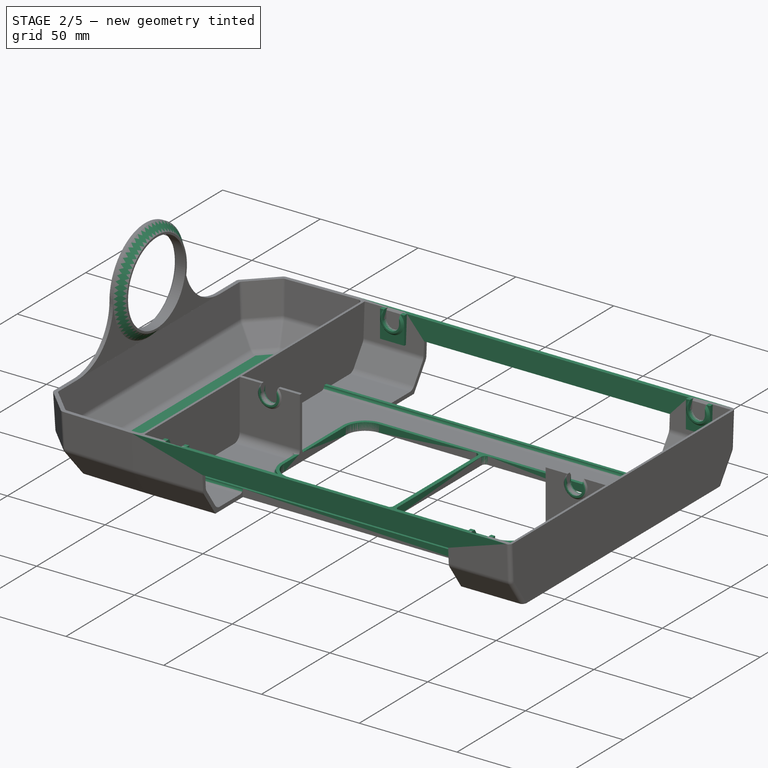
[diagram: stage 2 of 5 — iso view after this stage's code; geometry added in this stage tinted green]
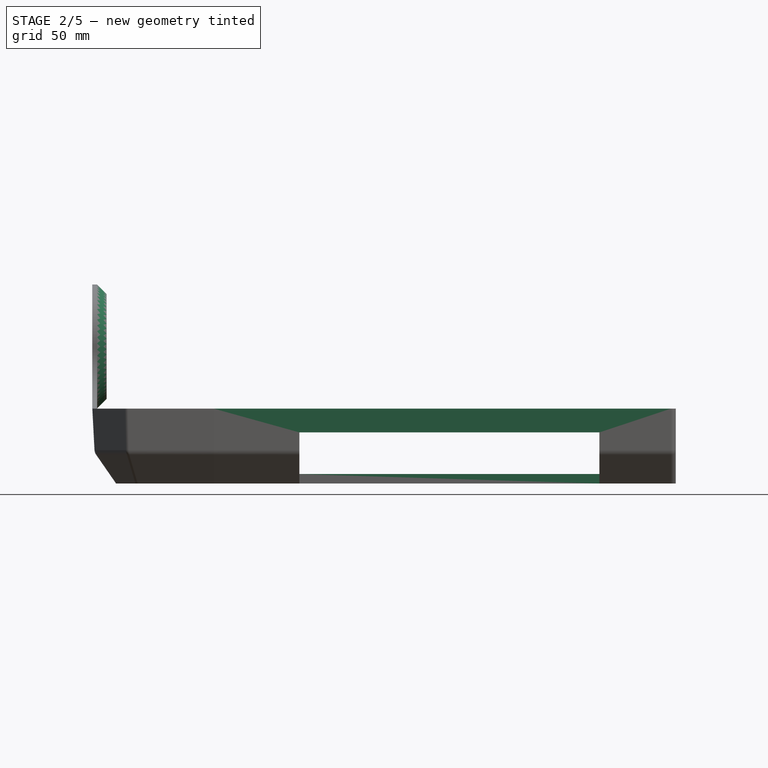
[diagram: stage 2 of 5 — front view after this stage's code; geometry added in this stage tinted green]
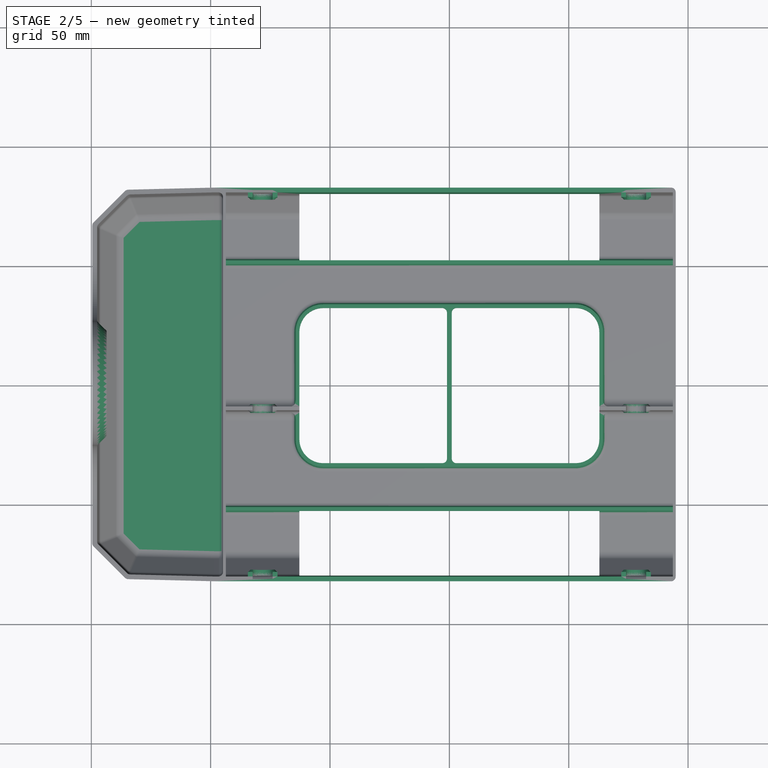
[diagram: stage 2 of 5 — top view after this stage's code; geometry added in this stage tinted green]
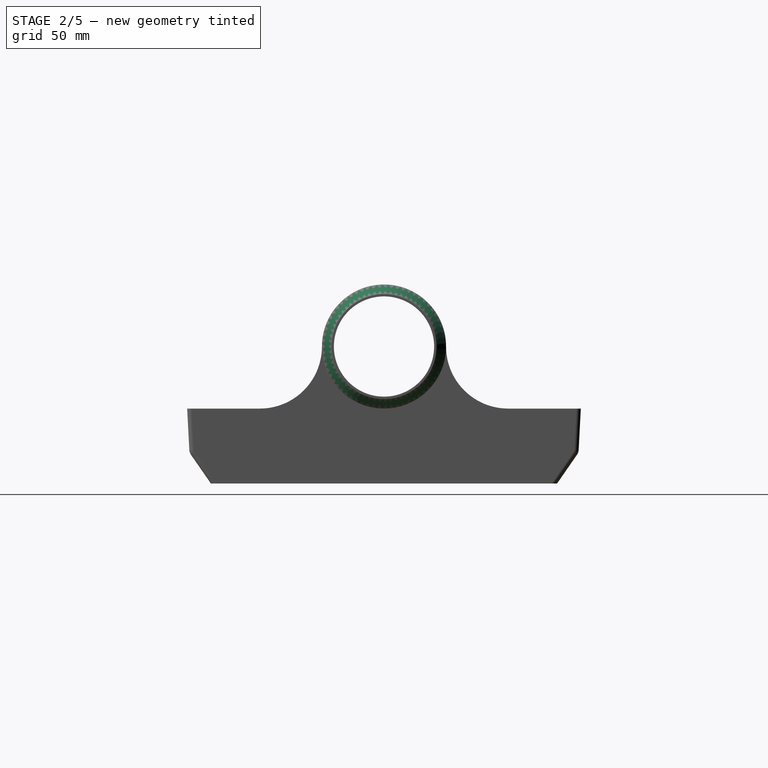
[diagram: stage 2 of 5 — right view after this stage's code; geometry added in this stage tinted green]
FEATURE [PartDesign::Chamfer] Chamfer015
  Angle = 45
  Base = -> Chamfer018 [Edge46]
  BaseFeature = -> Chamfer018
  ChamferType = 0
  FlipDirection = false
  Refine = true
  Size = 3.99
  Size2 = 1
  SupportTransform = false
  Suppressed = false
  UseAllEdges = false
  expr: Size = <<SHF_HumHolderRing_>>.Length - 0.01 mm
FEATURE [PartDesign::Pad] Pad029  label="SHF_SilicaTrayBottom_"
  BaseFeature = -> Chamfer015
  Direction = (0,0,1)
  Length = 2
  Length2 = 10
  Profile = -> Sketch047
  ReferenceAxis = -> Sketch047 [N_Axis]
  Refine = true
  SideType = 0
  Suppressed = false
  Type = 0
  Type2 = 0
  expr: Length = <<SHF_Base_>>.Length
FEATURE [PartDesign::Pad] Pad018  label="SHF_SideBrace_"
  BaseFeature = -> Pad029
  Direction = (1,0,0)
  Length = 125.632
  Length2 = 10
  Profile = -> Sketch027
  ReferenceAxis = -> Sketch027 [N_Axis]
  Refine = true
  SideType = 2
  Suppressed = false
  Type = 0
  Type2 = 0
  expr: Length = <<SHT_XZ>>.Constraints.BaseWidth - <<SHT_XZ>>.Constraints.WingWidth * 2
FEATURE [PartDesign::Pad] Pad010  label="SHF_BaseBrace_"
  BaseFeature = -> Pad018
  Direction = (0,0,1)
  Length = 2
  Length2 = 10
  Profile = -> Sketch016
  ReferenceAxis = -> Sketch016 [N_Axis]
  Refine = true
  SideType = 0
  Suppressed = false
  Type = 0
  Type2 = 0
FEATURE [PartDesign::Fillet] Fillet001
  Base = -> Pad010 [Edge123,Edge29,Edge209,Edge199,Edge196,Edge120,Edge264,Edge253,Edge255,Edge257,Edge259,Edge333,Edge167,Edge328,Edge280,Edge162,Edge63,Edge181,Edge276,Edge398,Edge395,Edge392,Edge393]
  BaseFeature = -> Pad010
  Radius = 1.95
  SupportTransform = false
  Suppressed = false
  UseAllEdges = false
FEATURE [PartDesign::Pad] Pad006  label="FrontRodCaddy_"
  BaseFeature = -> Fillet001
  Direction = (0,-1,2e-16)
  Length = 1.9291
  Length2 = 2
  Profile = -> Sketch012
  ReferenceAxis = -> Sketch012 [N_Axis]
  Refine = true
  Reversed = true
  SideType = 0
  Suppressed = false
  Type = 0
  Type2 = 0
  expr: Length = (<<SHT_YZ>>.Constraints.InnerWidth_Top - <<SHT_YZ>>.Constraints.InnerWidth_Middle) / 2 + 1 mm
FEATURE [PartDesign::Pad] Pad021  label="RearRodCaddy_"
  BaseFeature = -> Pad006
  Direction = (0,-1,2e-16)
  Length = 1.9291
  Length2 = 2
  Profile = -> Sketch031
  ReferenceAxis = -> Sketch031 [N_Axis]
  Refine = true
  SideType = 0
  Suppressed = false
  Type = 0
  Type2 = 0
  expr: Length = <<FrontRodCaddy_>>.Length
FEATURE [PartDesign::Pad] Pad007  label="CentralRollerSpacers_"
  BaseFeature = -> Pad021
  Direction = (0,-1,2e-16)
  Length = 3.6
  Length2 = 10
  Profile = -> Sketch013
  ReferenceAxis = -> Sketch013 [N_Axis]
  Refine = true
  Reversed = true
  SideType = 2
  Suppressed = false
  Type = 0
  Type2 = 0
  expr: Length = <<SHF_MiddleWing_>>.Length + 2 mm
FEATURE [PartDesign::Pad] Pad022  label="FrontRollerSpacers_"
  BaseFeature = -> Pad007
  Direction = (0,-1,2e-16)
  Length = 1
  Length2 = 10
  Profile = -> Sketch032
  ReferenceAxis = -> Sketch032 [N_Axis]
  Reversed = true
  SideType = 0
  Suppressed = false
  Type = 0
  Type2 = 0
FEATURE [PartDesign::Pad] Pad023  label="RearRollerSpacers_"
  BaseFeature = -> Pad022
  Direction = (0,-1,2e-16)
  Length = 1
  Length2 = 10
  Profile = -> Sketch033
  ReferenceAxis = -> Sketch033 [N_Axis]
  Refine = true
  SideType = 0
  Suppressed = false
  Type = 0
  Type2 = 0
FEATURE [PartDesign::Chamfer] Chamfer008
  Angle = 45
  Base = -> Pad023 [Edge21,Edge529,Edge523,Edge498,Edge490,Edge26,Edge542,Edge548,Edge55,Edge63,Edge76,Edge84]
  BaseFeature = -> Pad023
  ChamferType = 0
  FlipDirection = false
  Size = 0.99
  Size2 = 1
  SupportTransform = false
  Suppressed = false
  UseAllEdges = false
  expr: Size = <<FrontRollerSpacers_>>.Length - 0.01 mm
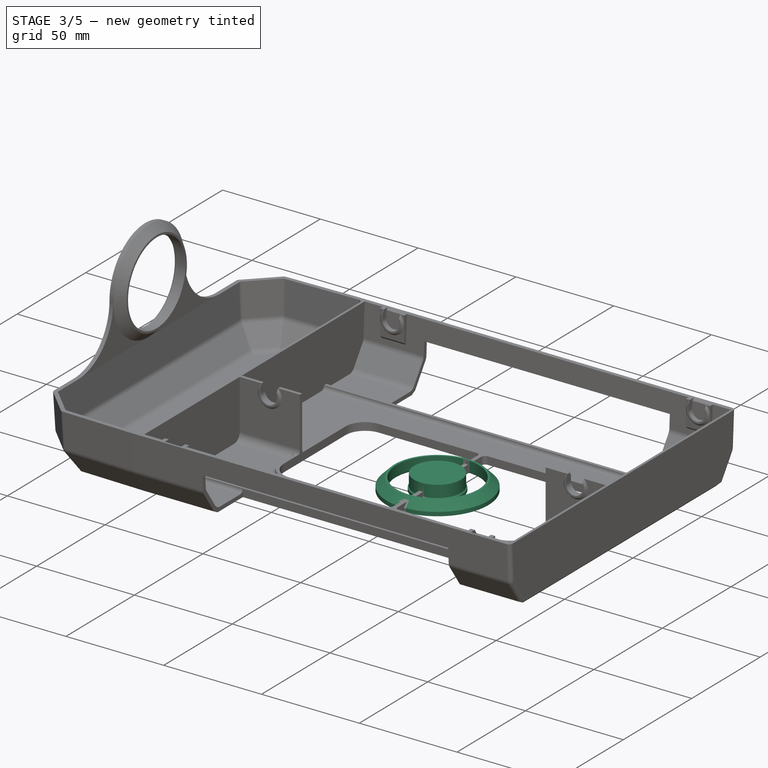
[diagram: stage 3 of 5 — iso view after this stage's code; geometry added in this stage tinted green]
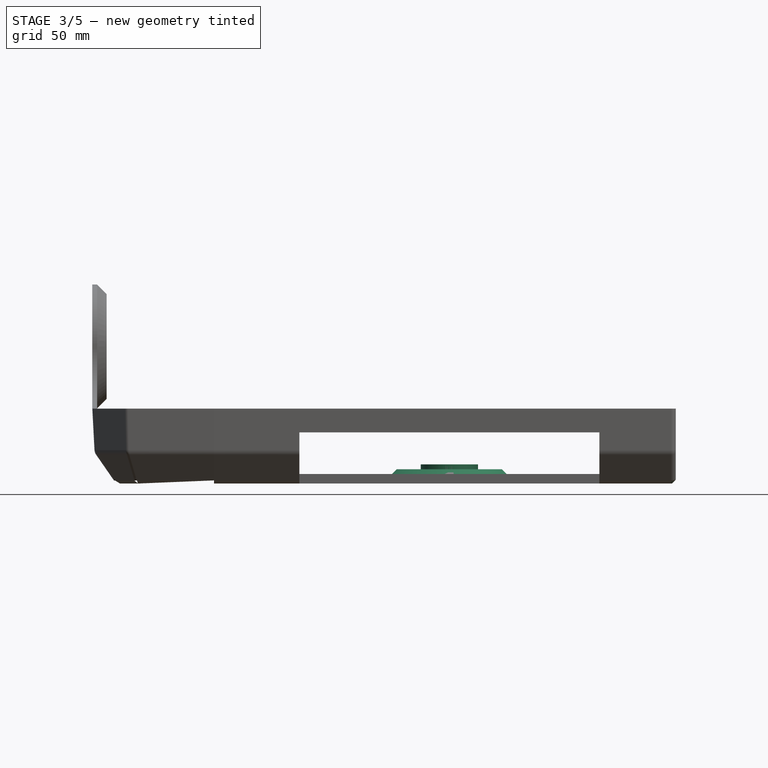
[diagram: stage 3 of 5 — front view after this stage's code; geometry added in this stage tinted green]
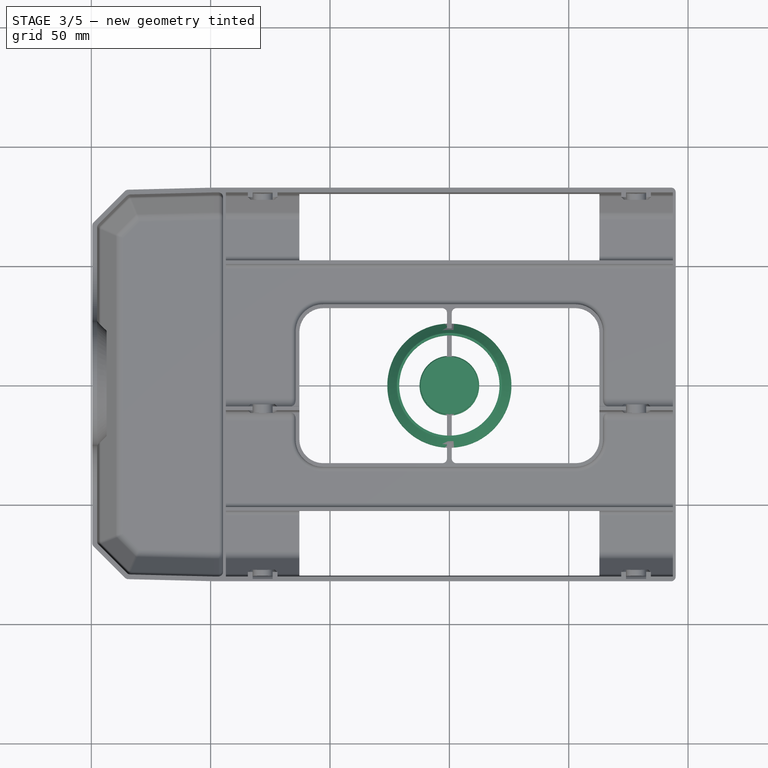
[diagram: stage 3 of 5 — top view after this stage's code; geometry added in this stage tinted green]
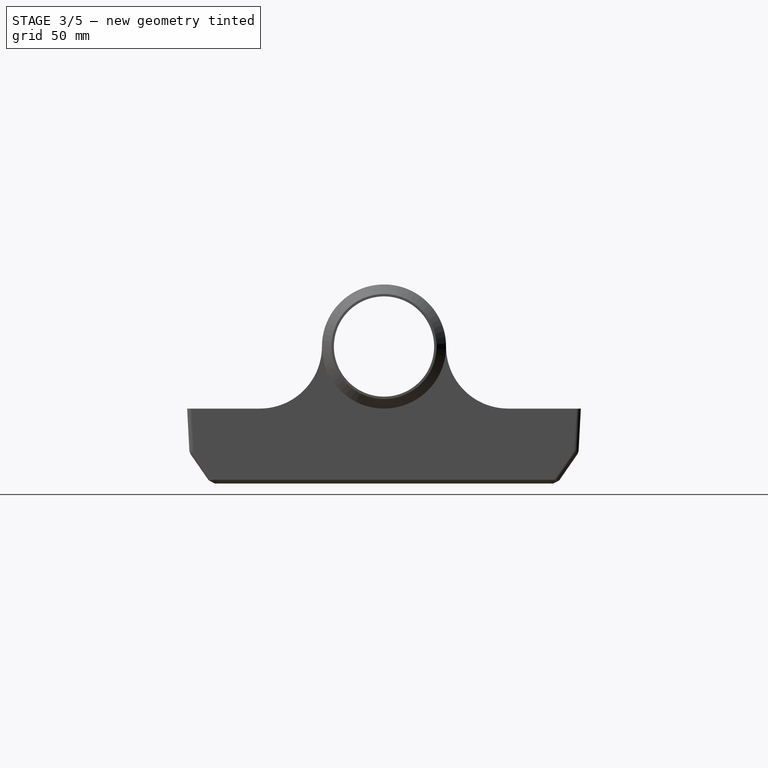
[diagram: stage 3 of 5 — right view after this stage's code; geometry added in this stage tinted green]
FEATURE [Sketcher::SketchObject] Sketch031  label="RearRodCaddy"
  ArcFitTolerance = 1e-06
  AttachmentOffset = pos=(0,0,-80.4616) rot=(0,0,1;0rad)
  AttachmentSupport = -> [XZ_Plane004]
  ExternalGeometry = -> [ShapeBinder002,ShapeBinder003]
  ExternalTypes = [0]
  FullyConstrained = true
  MakeInternals = false
  MapMode = 5
  Placement = pos=(0,80.4616,-1.79e-14) rot=(1,0,0;1.5708rad)
  _ExternalGeoVersion = 0
  expr: .AttachmentOffset.Base.z = -<<SHT_YZ>>.Constraints.InnerWidth_Top / 2
  expr: Constraints[19] = <<Literals>>.RollerAxisRadius * 3.5
  expr: Constraints[4] = <<Literals>>.RollerAxisRadius + 0.2 mm
  sketch-geometry (16):
    g0: ArcOfCircle CenterX=-78.2161 CenterY=27 CenterZ=0 NormalX=0 NormalY=0 NormalZ=1 AngleXU=0 Radius=4.2 StartAngle=3.14159 EndAngle=6.28319
    g1: LineSegment StartX=-82.4161 StartY=27 StartZ=0 EndX=-82.4161 EndY=31.4 EndZ=0
    g2: LineSegment StartX=-74.0161 StartY=27 StartZ=0 EndX=-74.0161 EndY=31.4 EndZ=0
    g3: LineSegment StartX=-82.4161 StartY=31.4 StartZ=0 EndX=-84.4161 EndY=31.4 EndZ=0
    g4: LineSegment StartX=-84.4161 StartY=31.4 StartZ=0 EndX=-84.4161 EndY=17.4 EndZ=0
    g5: LineSegment StartX=-74.0161 StartY=31.4 StartZ=0 EndX=-72.0161 EndY=31.4 EndZ=0
    g6: LineSegment StartX=-72.0161 StartY=31.4 StartZ=0 EndX=-72.0161 EndY=17.4 EndZ=0
    g7: LineSegment StartX=-72.0161 StartY=17.4 StartZ=0 EndX=-84.4161 EndY=17.4 EndZ=0
    g8: ArcOfCircle CenterX=78.2161 CenterY=27 CenterZ=0 NormalX=0 NormalY=0 NormalZ=1 AngleXU=0 Radius=4.2 StartAngle=3.14159 EndAngle=6.28319
    g9: LineSegment StartX=82.4161 StartY=27 StartZ=0 EndX=82.4161 EndY=31.4 EndZ=0
    g10: LineSegment StartX=74.0161 StartY=27 StartZ=0 EndX=74.0161 EndY=31.4 EndZ=0
    g11: LineSegment StartX=74.0161 StartY=31.4 StartZ=0 EndX=72.0161 EndY=31.4 EndZ=0
    g12: LineSegment StartX=82.4161 StartY=31.4 StartZ=0 EndX=84.4161 EndY=31.4 EndZ=0
    g13: LineSegment StartX=84.4161 StartY=31.4 StartZ=0 EndX=84.4161 EndY=17.4 EndZ=0
    g14: LineSegment StartX=72.0161 StartY=31.4 StartZ=0 EndX=72.0161 EndY=17.4 EndZ=0
    g15: LineSegment StartX=72.0161 StartY=17.4 StartZ=0 EndX=84.4161 EndY=17.4 EndZ=0
  constraints (44):
    c: Vertical(g1)
    c: Vertical(g2)
    c: Tangent(g2,g0) = -1.5708
    c: Tangent(g0,g1) = 1.5708
    c: Radius(g0) = 4.2
    c: Equal(g1,g2)
    c: Coincident(g3,g1)
    c: Horizontal(g3)
    c: Coincident(g4,g3)
    c: Vertical(g4)
    c: Coincident(g5,g2)
    c: Horizontal(g5)
    c: Coincident(g6,g5)
    c: Vertical(g6)
    c: Coincident(g7,g6)
    c: Horizontal(g7)
    c: Equal(g3,g5)
    c: DistanceX(g3,g3) = 2
    c: Coincident(g4,g7)
    c: DistanceY(g4,g4) = 14
    c: Equal(g8,g0)
    c: Vertical(g9)
    c: Vertical(g10)
    c: Tangent(g8,g10) = 1.5708
    c: Tangent(g8,g9) = -1.5708
    c: Equal(g9,g10)
    c: Equal(g10,g2)
    c: Coincident(g11,g10)
    c: Horizontal(g11)
    c: Coincident(g12,g9)
    c: Horizontal(g12)
    c: Coincident(g13,g12)
    c: Vertical(g13)
    c: Coincident(g14,g11)
    c: Vertical(g14)
    c: Coincident(g15,g14)
    c: Coincident(g15,g13)
    c: Horizontal(g15)
    c: Equal(g12,g11)
    c: Equal(g11,g5)
    c: Equal(g6,g14)
    c: PointOnObject(g-5,g5)
    c: Coincident(g8,g-4)
    c: Coincident(g0,g-3)
FEATURE [Sketcher::SketchObject] Sketch032  label="FrontRollerSpacers"
  ArcFitTolerance = 1e-06
  AttachmentOffset = pos=(0,0,78.5325) rot=(0,0,1;0rad)
  AttachmentSupport = -> [XZ_Plane004]
  ExternalGeometry = -> [Sketch012]
  ExternalTypes = [0]
  FullyConstrained = true
  MakeInternals = false
  MapMode = 5
  Placement = pos=(0,-78.5325,1.74e-14) rot=(1,0,0;1.5708rad)
  _ExternalGeoVersion = 0
  expr: .AttachmentOffset.Base.z = <<SHT_YZ>>.Constraints.InnerWidth_Top / 2 - <<FrontRodCaddy_>>.Length
  sketch-geometry (8):
    g0: LineSegment StartX=-82.4161 StartY=31.4 StartZ=0 EndX=-82.4161 EndY=27 EndZ=0
    g1: LineSegment StartX=-74.0161 StartY=31.4 StartZ=0 EndX=-74.0161 EndY=27 EndZ=0
    g2: ArcOfCircle CenterX=-78.2161 CenterY=27 CenterZ=0 NormalX=0 NormalY=0 NormalZ=1 AngleXU=0 Radius=4.2 StartAngle=3.1416 EndAngle=6.28318
    g3: ArcOfCircle CenterX=-78.2161 CenterY=27 CenterZ=0 NormalX=0 NormalY=0 NormalZ=1 AngleXU=0 Radius=6.08275 StartAngle=2.33295 EndAngle=7.09183
    g4: LineSegment StartX=74.0161 StartY=31.4 StartZ=0 EndX=74.0161 EndY=27 EndZ=0
    g5: LineSegment StartX=82.4161 StartY=31.4 StartZ=0 EndX=82.4161 EndY=27 EndZ=0
    g6: ArcOfCircle CenterX=78.2161 CenterY=27 CenterZ=0 NormalX=0 NormalY=0 NormalZ=1 AngleXU=0 Radius=4.2 StartAngle=3.1416 EndAngle=6.28318
    g7: ArcOfCircle CenterX=78.2161 CenterY=27 CenterZ=0 NormalX=0 NormalY=0 NormalZ=1 AngleXU=0 Radius=6.08275 StartAngle=2.33295 EndAngle=7.09183
  constraints (20):
    c: Coincident(g0,g-5)
    c: Coincident(g0,g-3)
    c: Coincident(g1,g-4)
    c: Coincident(g1,g-3)
    c: Coincident(g2,g0)
    c: Coincident(g2,g1)
    c: Equal(g-3,g2)
    c: Coincident(g3,g2)
    c: Coincident(g3,g0)
    c: PointOnObject(g3,g1)
    c: Coincident(g4,g-8)
    c: Coincident(g4,g-6)
    c: Coincident(g5,g-7)
    c: Coincident(g5,g-6)
    c: Coincident(g6,g4)
    c: Coincident(g6,g5)
    c: PointOnObject(g7,g5)
    c: Coincident(g6,g7)
    c: Coincident(g7,g4)
    c: Equal(g6,g-6)
FEATURE [Sketcher::SketchObject] Sketch033  label="RearRollerSpacers"
  ArcFitTolerance = 1e-06
  AttachmentOffset = pos=(0,0,-78.5325) rot=(0,0,1;0rad)
  AttachmentSupport = -> [XZ_Plane004]
  ExternalGeometry = -> [Sketch012]
  ExternalTypes = [0]
  FullyConstrained = true
  MakeInternals = false
  MapMode = 5
  Placement = pos=(0,78.5325,-1.74e-14) rot=(1,0,0;1.5708rad)
  _ExternalGeoVersion = 0
  expr: .AttachmentOffset.Base.z = -<<SHT_YZ>>.Constraints.InnerWidth_Top / 2 + <<RearRodCaddy_>>.Length
  sketch-geometry (8):
    g0: LineSegment StartX=-82.4161 StartY=31.4 StartZ=0 EndX=-82.4161 EndY=27 EndZ=0
    g1: LineSegment StartX=-74.0161 StartY=31.4 StartZ=0 EndX=-74.0161 EndY=27 EndZ=0
    g2: ArcOfCircle CenterX=-78.2161 CenterY=27 CenterZ=0 NormalX=0 NormalY=0 NormalZ=1 AngleXU=0 Radius=4.2 StartAngle=3.1416 EndAngle=6.28318
    g3: ArcOfCircle CenterX=-78.2161 CenterY=27 CenterZ=0 NormalX=0 NormalY=0 NormalZ=1 AngleXU=0 Radius=6.08275 StartAngle=2.33295 EndAngle=7.09183
    g4: LineSegment StartX=74.0161 StartY=31.4 StartZ=0 EndX=74.0161 EndY=27 EndZ=0
    g5: LineSegment StartX=82.4161 StartY=31.4 StartZ=0 EndX=82.4161 EndY=27 EndZ=0
    g6: ArcOfCircle CenterX=78.2161 CenterY=27 CenterZ=0 NormalX=0 NormalY=0 NormalZ=1 AngleXU=0 Radius=4.2 StartAngle=3.1416 EndAngle=6.28318
    g7: ArcOfCircle CenterX=78.2161 CenterY=27 CenterZ=0 NormalX=0 NormalY=0 NormalZ=1 AngleXU=0 Radius=6.08275 StartAngle=2.33295 EndAngle=7.09183
  constraints (20):
    c: Coincident(g0,g-3)
    c: Coincident(g1,g-3)
    c: Coincident(g2,g0)
    c: Coincident(g2,g1)
    c: Equal(g-3,g2)
    c: Coincident(g3,g2)
    c: Coincident(g3,g0)
    c: PointOnObject(g3,g1)
    c: Coincident(g4,g-4)
    c: Coincident(g5,g-4)
    c: Coincident(g6,g4)
    c: Coincident(g6,g5)
    c: PointOnObject(g7,g5)
    c: Coincident(g6,g7)
    c: Coincident(g7,g4)
    c: Equal(g6,g-4)
    c: Coincident(g0,g-5)
    c: Coincident(g1,g-6)
    c: Coincident(g4,g-7)
    c: Coincident(g5,g-8)
FEATURE [Sketcher::SketchObject] Sketch
  ArcFitTolerance = 1e-06
  AttachmentSupport = -> [XY_Plane]
  ExternalTypes = [0]
  FullyConstrained = true
  MakeInternals = false
  MapMode = 5
  _ExternalGeoVersion = 0
  sketch-geometry (1):
    g0: Circle CenterX=0 CenterY=0 CenterZ=0 NormalX=0 NormalY=0 NormalZ=1 AngleXU=0 Radius=12
  constraints (2):
    c: Coincident(g0,g-1)
    c: Diameter(g0) = 24  'Dia'
FEATURE [PartDesign::Pad] Pad
  Direction = (0,0,1)
  Length = 6
  Length2 = 10
  Profile = -> Sketch
  ReferenceAxis = -> Sketch [N_Axis]
  Refine = true
  SideType = 0
  Suppressed = false
  Type = 0
  Type2 = 0
FEATURE [Part::Part2DObjectPython] VThreadProfile  # Draft 2D object (typed FeaturePython)
  Area = 89.3444
  Closed = true
  Continuity = C2
  Deviation = 0.1
  Height = 10
  Helix = Helix001
  Instructions = Expand this with the ... button to view instructions | Sweep this object along a helix of the same pitch to produce your thread. | It is recommended to make the helix in the ThreadProfile workbench. | If there is an active Body the ThreadProfile object will be put into it.,If not it can be dragged and dropped into the body later. | If there is an active Body when the helix is made there will be made a ShapeBinder for it | For internal threads you will need to cut the Sweep object out of a cylinder, or if using Part Design sweep it as a Subtractive Pipe. | Always use Frenet mode | I have provided some presets, but it is possible there could be some errors.  Double check for mission critical applications. | Also, the tolerances might be different from what you wish to have.  I believe the internal minor diameters are all minimum and the external are all maximum.
  InternalOrExternal = 1
  MajorDiameter = 11.7474
  MajorDiameterFinal = 11.7474
  MakeFace = true
  MinorDiameter = 9.853
  MinorDiameterFinal = 9.853
  Parameterization = 1
  Pitch = 1.75
  Placement = pos=(0,0,6) rot=(0,0,1;0rad)
  Points = (66) [(4.89966,0.472443,0),(4.79586,0.933551,0),(4.65903,1.3821,0),(4.48661,1.8155,0),(4.27844,2.23085,0),(4.03535,2.62518,0),(3.75878,2.99561,0),+59 more]
  Presets = 22
  Quality = 11
  ThreadCount = 5.71429
  Tolerance = 0
  Variants = 0
  Version = 1.96
  d_delta = 1.89443
  external2S_data = [-0.00461051,-0.00886426,-0.0128148,-0.0165028,-0.0199596,-0.0232105,-0.0262759,-0.0291725,-0.0319145,-0.0345137,-0.0369805,-0.0393235,-0.0415505,-0.0436681,-0.0456823,-0.0475981,-0.0494204,-0.0511532,-0.0528003,-0.0543649,-0.0558502,+698 more]
  external3S_data = [-0.00677828,-0.0128149,-0.0182584,-0.0232106,-0.0277444,-0.0319145,-0.0357632,-0.0393236,-0.0426227,-0.0456823,-0.0485208,-0.0511533,-0.0535928,-0.0558503,-0.0579353,-0.059856,-0.0616195,-0.0632319,-0.0646984,-0.0660239,-0.0672123,+698 more]
  external45_data = [-0.00137363,-0.00271738,-0.00403219,-0.00531893,-0.00657844,-0.00781148,-0.00901878,-0.010201,-0.0113589,-0.012493,-0.0136039,-0.0146921,-0.0157583,-0.0168028,-0.0178261,-0.0188288,-0.0198112,-0.0207738,-0.0217169,-0.0226409,-0.0235462,+698 more]
  external_data = [-0.00235387,-0.00461052,-0.00677828,-0.00886428,-0.0108747,-0.0128149,-0.0146895,-0.0165028,-0.0182584,-0.0199597,-0.0216095,-0.0232106,-0.0247653,-0.0262759,-0.0277444,-0.0291725,-0.0305621,-0.0319145,-0.0332313,-0.0345138,-0.0357632,+698 more]
  internal2S_data = [0,0,0,0,0,0,0,0,0,0,0,0,0,0,0,0,0,0,0,0,0,0,0,0,0,0,0,0,0,0,0,0,0,0,0,0,0,0,0,0,0,0,0,0,0,0,0,0,0,0,0,0,0,0,0,0,0,0,0,0,0,0,0,0,0,0,0,0,0,0,0,0,0,0,0,0,0,0,0,0,0,0,0,0,0,0,0,0,0,0,0.00481128,0.00962256,0.0144338,0.0192451,0.0240564,+624 more]
  internal3S_data = [0,0,0,0,0,0,0,0,0,0,0,0,0,0,0,0,0,0,0,0,0,0,0,0,0,0,0,0,0,0,0,0,0,0,0,0,0,0,0,0,0,0,0,0,0,0,0,0,0,0,0,0,0,0,0,0,0,0,0,0,0.00721688,0.0144338,0.0216506,0.0288675,0.0360844,0.0433013,0.0505181,0.057735,0.0649519,0.0721688,0.0793857,0.0866025,+647 more]
  internal45_data = [0,0,0,0,0,0,0,0,0,0,0,0,0,0,0,0,0,0,0,0,0,0,0,0,0,0,0,0,0,0,0,0,0,0,0,0,0,0,0,0,0,0,0,0,0,0,0,0,0,0,0,0,0,0,0,0,0,0,0,0,0,0,0,0,0,0,0,0,0,0,0,0,0,0,0,0,0,0,0,0,0,0,0,0,0,0,0,0,0,0,0,0,0,0,0,0,0,0,0,0,0,0,0,0,0,0,0,0,0,0,0,0,0,0,0,0,0,0,0,0,+599 more]
  internal_data = [0,0,0,0,0,0,0,0,0,0,0,0,0,0,0,0,0,0,0,0,0,0,0,0,0,0,0,0,0,0,0,0,0,0,0,0,0,0,0,0,0,0,0,0,0,0,0,0,0,0,0,0,0,0,0,0,0,0,0,0,0,0,0,0,0,0,0,0,0,0,0,0,0,0,0,0,0,0,0,0,0,0,0,0,0,0,0,0,0,0,0,0,0,0,0,0,0,0,0,0,0,0,0,0,0,0,0,0,0,0,0,0,0,0,0,0,0,0,0,0,+599 more]
  preset_names = <blob: 3959 chars omitted>
  presets_data = [0,0,0,2.20878,24.1173,24.6888,0.25,0.693,0.729,0.25,0.793,0.829,0.25,0.893,0.929,0.3,1.032,1.075,0.35,1.171,1.221,0.35,1.371,1.421,0.4,1.509,1.567,0.45,1.648,1.713,0.45,1.948,2.013,0.5,2.387,2.459,0.6,2.764,2.85,0.7,3.141,3.242,0.75,3.58,+712 more]
  expr: .Placement.Base.z = <<Pad>>.Length
FEATURE [Part::Helix] Helix
  Angle = 0
  AttacherType = Attacher::AttachEngine3D
  Height = 10
  Length = 37.2705
  LocalCoord = 0
  Pitch = 1.75
  Placement = pos=(0,0,6) rot=(0,0,1;0rad)
  Radius = 1
  SegmentLength = 1
  Style = 0
  expr: .Placement.Base.z = <<Pad>>.Length
  expr: AttachmentOffset = VThreadProfile.AttachmentOffset
  expr: AttachmentSupport = VThreadProfile.AttachmentSupport
  expr: Height = VThreadProfile.ThreadCount * VThreadProfile.Pitch
  expr: MapMode = VThreadProfile.MapMode
  expr: MapPathParameter = VThreadProfile.MapPathParameter
  expr: MapReversed = VThreadProfile.MapReversed
  expr: Pitch = VThreadProfile.Pitch
  expr: SegmentLength = 1
FEATURE [Sketcher::SketchObject] Sketch039
  ArcFitTolerance = 1e-06
  AttachmentSupport = -> [XY_Plane]
  ExternalTypes = [0]
  FullyConstrained = true
  MakeInternals = false
  MapMode = 5
  _ExternalGeoVersion = 0
  sketch-geometry (1):
    g0: Circle CenterX=0 CenterY=0 CenterZ=0 NormalX=0 NormalY=0 NormalZ=1 AngleXU=0 Radius=2.135
  constraints (2):
    c: Coincident(g0,g-1)
    c: Diameter(g0) = 4.27
FEATURE [Sketcher::SketchObject] Sketch040
  ArcFitTolerance = 1e-06
  AttachmentSupport = -> [XY_Plane]
  ExternalGeometry = -> [Sketch]
  ExternalTypes = [0]
  FullyConstrained = true
  MakeInternals = false
  MapMode = 5
  _ExternalGeoVersion = 0
  expr: .Constraints.Offset = .Constraints.Rm / 3
  expr: .Constraints.Rm = <<Sketch>>.Constraints.Dia / 30
  sketch-geometry (9):
    g0: ArcOfCircle CenterX=-11.142 CenterY=1.13806 CenterZ=0 NormalX=0 NormalY=0 NormalZ=1 AngleXU=0 Radius=0.8 StartAngle=3.0398 EndAngle=3.93292
    g1: ArcOfCircle CenterX=-12.2667 CenterY=0 CenterZ=0 NormalX=0 NormalY=0 NormalZ=1 AngleXU=0 Radius=0.8 StartAngle=5.49185 EndAngle=7.07452
    g2: ArcOfCircle CenterX=-11.142 CenterY=-1.13806 CenterZ=0 NormalX=0 NormalY=0 NormalZ=1 AngleXU=0 Radius=0.8 StartAngle=2.35026 EndAngle=3.24338
    g3: LineSegment [constr] StartX=-12 StartY=0 StartZ=0 EndX=-12.2667 EndY=0 EndZ=0
    g4: LineSegment [constr] StartX=-11.9379 StartY=1.21935 StartZ=0 EndX=0 EndY=0 EndZ=0
    g5: LineSegment [constr] StartX=-11.9379 StartY=-1.21935 StartZ=0 EndX=0 EndY=0 EndZ=0
    g6: LineSegment StartX=-11.9379 StartY=-1.21935 StartZ=0 EndX=-12.1369 EndY=-1.23968 EndZ=0
    g7: LineSegment StartX=-11.9379 StartY=1.21935 StartZ=0 EndX=-12.1369 EndY=1.23968 EndZ=0
    g8: ArcOfCircle CenterX=0 CenterY=0 CenterZ=0 NormalX=0 NormalY=0 NormalZ=1 AngleXU=0 Radius=12.2 StartAngle=3.0398 EndAngle=3.24338
  constraints (25):
    c: Equal(g0,g1)
    c: Equal(g1,g2)
    c: Tangent(g1,g2) = 1.5708
    c: Tangent(g0,g1) = 1.5708
    c: Radius(g1) = 0.8  'Rm'
    c: Tangent(g0,g-3) = -1.5708
    c: Tangent(g2,g-3) = -1.5708
    c: PointOnObject(g3,g-3)
    c: Horizontal(g3)
    c: PointOnObject(g-3,g3)
    c: DistanceX(g3,g3) = 0.266667  'Offset'
    c: Coincident(g1,g3)
    c: Coincident(g4,g0)
    c: Coincident(g5,g2)
    c: Coincident(g6,g2)
    c: PointOnObject(g-3,g7)
    c: PointOnObject(g-3,g6)
    c: Coincident(g-3,g4)
    c: Coincident(g-3,g5)
    c: Angle(g4,g5) = 0.203577  'Angle'
    c: Distance(g7) = 0.2
    c: Coincident(g8,g6)
    c: Coincident(g8,g7)
    c: Coincident(g7,g0)
    c: Coincident(g8,g-3)
FEATURE [PartDesign::Chamfer] Chamfer
  Angle = 45
  Base = -> Pad [Edge2]
  BaseFeature = -> Pad
  ChamferType = 0
  FlipDirection = false
  Refine = true
  Size = 0.733333
  Size2 = 1
  SupportTransform = false
  Suppressed = false
  UseAllEdges = false
  expr: Size = <<Sketch040>>.Constraints.Rm - <<Sketch040>>.Constraints.Offset + 0.2 mm
FEATURE [PartDesign::Body] Body012  label="PC_Bolt_M5"
  AllowCompound = false
  Group = -> [Clone003,VThreadProfile002,Helix002,SubtractivePipe001,Chamfer012]
  Origin = -> Origin012
  Tip = -> Chamfer012
FEATURE [Sketcher::SketchObject] Sketch041
  ArcFitTolerance = 1e-06
  AttachmentSupport = -> [XY_Plane013]
  ExternalTypes = [0]
  FullyConstrained = true
  MakeInternals = false
  MapMode = 5
  _ExternalGeoVersion = 0
  expr: .Constraints.Dia = <<Sketch>>.Constraints.Dia
  sketch-geometry (1):
    g0: Circle CenterX=0 CenterY=0 CenterZ=0 NormalX=0 NormalY=0 NormalZ=1 AngleXU=0 Radius=12
  constraints (2):
    c: Coincident(g0,g-1)
    c: Diameter(g0) = 24  'Dia'
FEATURE [Sketcher::SketchObject] Sketch042
  ArcFitTolerance = 1e-06
  AttachmentSupport = -> [XY_Plane013]
  ExternalGeometry = -> [Sketch041]
  ExternalTypes = [0]
  FullyConstrained = true
  MakeInternals = false
  MapMode = 5
  _ExternalGeoVersion = 0
  expr: .Constraints.Offset = .Constraints.Rm / 3
  expr: .Constraints.Rm = <<Sketch041>>.Constraints.Dia / 30
  sketch-geometry (9):
    g0: ArcOfCircle CenterX=-11.142 CenterY=1.13806 CenterZ=0 NormalX=0 NormalY=0 NormalZ=1 AngleXU=0 Radius=0.8 StartAngle=3.0398 EndAngle=3.93292
    g1: ArcOfCircle CenterX=-12.2667 CenterY=0 CenterZ=0 NormalX=0 NormalY=0 NormalZ=1 AngleXU=0 Radius=0.8 StartAngle=5.49185 EndAngle=7.07452
    g2: ArcOfCircle CenterX=-11.142 CenterY=-1.13806 CenterZ=0 NormalX=0 NormalY=0 NormalZ=1 AngleXU=0 Radius=0.8 StartAngle=2.35026 EndAngle=3.24338
    g3: LineSegment [constr] StartX=-12 StartY=0 StartZ=0 EndX=-12.2667 EndY=0 EndZ=0
    g4: LineSegment [constr] StartX=-11.9379 StartY=1.21935 StartZ=0 EndX=0 EndY=0 EndZ=0
    g5: LineSegment [constr] StartX=-11.9379 StartY=-1.21935 StartZ=0 EndX=0 EndY=0 EndZ=0
    g6: LineSegment StartX=-11.9379 StartY=-1.21935 StartZ=0 EndX=-12.1369 EndY=-1.23968 EndZ=0
    g7: LineSegment StartX=-11.9379 StartY=1.21935 StartZ=0 EndX=-12.1369 EndY=1.23968 EndZ=0
    g8: ArcOfCircle CenterX=0 CenterY=0 CenterZ=0 NormalX=0 NormalY=0 NormalZ=1 AngleXU=0 Radius=12.2 StartAngle=3.0398 EndAngle=3.24338
  constraints (25):
    c: Equal(g0,g1)
    c: Equal(g1,g2)
    c: Tangent(g1,g2) = 1.5708
    c: Tangent(g0,g1) = 1.5708
    c: Radius(g1) = 0.8  'Rm'
    c: Tangent(g0,g-3) = -1.5708
    c: Tangent(g2,g-3) = -1.5708
    c: PointOnObject(g3,g-3)
    c: Horizontal(g3)
    c: PointOnObject(g-3,g3)
    c: DistanceX(g3,g3) = 0.266667  'Offset'
    c: Coincident(g1,g3)
    c: Coincident(g4,g0)
    c: Coincident(g5,g2)
    c: Coincident(g6,g2)
    c: PointOnObject(g-3,g7)
    c: PointOnObject(g-3,g6)
    c: Coincident(g-3,g4)
    c: Coincident(g-3,g5)
    c: Angle(g4,g5) = 0.203577  'Angle'
    c: Distance(g7) = 0.2
    c: Coincident(g8,g6)
    c: Coincident(g8,g7)
    c: Coincident(g7,g0)
    c: Coincident(g8,g-3)
FEATURE [PartDesign::Pad] Pad026
  Direction = (0,0,1)
  Length = 8
  Length2 = 10
  Profile = -> Sketch041
  ReferenceAxis = -> Sketch041 [N_Axis]
  Refine = true
  SideType = 0
  Suppressed = false
  Type = 0
  Type2 = 0
FEATURE [PartDesign::Body] Body013  label="PC_Nut"
  AllowCompound = false
  Group = -> [Sketch041,Pad026,Chamfer013,Sketch042,Pocket002,PolarPattern001,VThreadProfile003,Helix003,SubtractivePipe002]
  Origin = -> Origin013
  Tip = -> SubtractivePipe002
FEATURE [Sketcher::SketchObject] Sketch043
  ArcFitTolerance = 1e-06
  AttachmentSupport = -> [XY_Plane014]
  ExternalTypes = [0]
  FullyConstrained = true
  MakeInternals = false
  MapMode = 5
  _ExternalGeoVersion = 0
  expr: Constraints[1] = <<Sketch>>.Constraints.Dia + 1 mm
  sketch-geometry (2):
    g0: Circle CenterX=0 CenterY=0 CenterZ=0 NormalX=0 NormalY=0 NormalZ=1 AngleXU=0 Radius=12.5
    g1: Circle CenterX=0 CenterY=0 CenterZ=0 NormalX=0 NormalY=0 NormalZ=1 AngleXU=0 Radius=1.2
  constraints (4):
    c: Coincident(g0,g-1)
    c: Diameter(g0) = 25
    c: Coincident(g1,g0)
    c: Diameter(g1) = 2.4
FEATURE [PartDesign::Pad] Pad027
  Direction = (0,0,1)
  Length = 2.4
  Length2 = 10
  Profile = -> Sketch043
  ReferenceAxis = -> Sketch043 [N_Axis]
  Refine = true
  SideType = 0
  Suppressed = false
  Type = 0
  Type2 = 0
FEATURE [PartDesign::Chamfer] Chamfer014
  Angle = 45
  Base = -> Pad027 [Face4]
  BaseFeature = -> Pad027
  ChamferType = 0
  FlipDirection = false
  Refine = true
  Size = 1
  Size2 = 1
  SupportTransform = false
  Suppressed = false
  UseAllEdges = false
FEATURE [PartDesign::Body] Body014  label="PC_DrillTool"
  AllowCompound = false
  Group = -> [Sketch043,Pad027,Chamfer014]
  Origin = -> Origin014
  Tip = -> Chamfer014
FEATURE [Sketcher::SketchObject] Sketch044
  ArcFitTolerance = 1e-06
  AttachmentSupport = -> [XY_Plane015]
  ExternalTypes = [0]
  FullyConstrained = true
  MakeInternals = false
  MapMode = 5
  _ExternalGeoVersion = 0
  sketch-geometry (1):
    g0: Circle CenterX=0 CenterY=0 CenterZ=0 NormalX=0 NormalY=0 NormalZ=1 AngleXU=0 Radius=10.5
  constraints (2):
    c: Coincident(g0,g-1)
    c: Diameter(g0) = 21
FEATURE [PartDesign::Pad] Pad028
  Direction = (0,0,1)
  Length = 3
  Length2 = 10
  Profile = -> Sketch044
  ReferenceAxis = -> Sketch044 [N_Axis]
  Refine = true
  SideType = 0
  Suppressed = false
  Type = 0
  Type2 = 0
FEATURE [App::Point] Origin032
  Role = Origin
FEATURE [Sketcher::SketchObject] Sketch052
  ArcFitTolerance = 1e-06
  AttachmentSupport = -> [Origin031]
  ExternalTypes = [0]
  FullyConstrained = true
  MakeInternals = false
  MapMode = 5
  _ExternalGeoVersion = 1
  sketch-geometry (2):
    g0: Circle CenterX=0 CenterY=0 CenterZ=0 NormalX=0 NormalY=0 NormalZ=1 AngleXU=0 Radius=26
    g1: Circle CenterX=0 CenterY=0 CenterZ=0 NormalX=0 NormalY=0 NormalZ=1 AngleXU=0 Radius=21
  constraints (4):
    c: Coincident(g0,g-1)
    c: Coincident(g1,g0)
    c: Diameter(g0) = 52
    c: Diameter(g1) = 42
FEATURE [PartDesign::Pad] Pad034
  Direction = (0,0,1)
  Length = 6
  Length2 = 10
  Profile = -> Sketch052
  ReferenceAxis = -> Sketch052 [N_Axis]
  Refine = true
  SideType = 0
  Suppressed = false
  Type = 0
  Type2 = 0
FEATURE [PartDesign::Chamfer] Chamfer016
  Angle = 45
  Base = -> Pad034 [Edge3]
  BaseFeature = -> Pad034
  ChamferType = 0
  FlipDirection = false
  Refine = true
  Size = 3.99
  Size2 = 1
  SupportTransform = false
  Suppressed = false
  UseAllEdges = false
FEATURE [PartDesign::Chamfer] Chamfer017
  Angle = 45
  Base = -> Chamfer016 [Edge6]
  BaseFeature = -> Chamfer016
  ChamferType = 0
  FlipDirection = false
  Refine = true
  Size = 0.6
  Size2 = 1
  SupportTransform = false
  Suppressed = false
  UseAllEdges = false
FEATURE [PartDesign::Chamfer] Chamfer009
  Angle = 45
  Base = -> Chamfer008 [Edge361,Edge333,Edge296,Edge241]
  BaseFeature = -> Chamfer008
  ChamferType = 0
  FlipDirection = false
  Size = 1.19
  Size2 = 1
  SupportTransform = false
  Suppressed = false
  UseAllEdges = false
FEATURE [PartDesign::Chamfer] Chamfer019
  Angle = 45
  Base = -> Chamfer009 [Edge553,Edge548,Edge547,Edge549]
  BaseFeature = -> Chamfer009
  ChamferType = 0
  FlipDirection = false
  Refine = true
  Size = 1.6
  Size2 = 1
  SupportTransform = false
  Suppressed = false
  UseAllEdges = false
FEATURE [PartDesign::Body] Body004  label="SpoolHolderFrame"
  AllowCompound = false
  Group = -> [ShapeBinder002,ShapeBinder003,Sketch009,Pad003,Sketch010,Pad004,Sketch016,Sketch022,Sketch029,Pad019,Pad015,Sketch027,Sketch045,Sketch046,Pad030,Sketch048,Pad033,Sketch051,Fillet,AdditivePipe002,Sketch047,DatumPlane,Sketch049,Pad031,Sketch050,Pad032,Chamfer018,Chamfer015,Pad029,Pad018,Pad010,Sketch012,Fillet001,Pad006,Sketch013,Pad021,Sketch031,Pad007,Sketch032,Pad022,Pad023,Sketch033,Chamfer008,+2 more]
  Origin = -> Origin004
  Tip = -> Chamfer019
FEATURE [Spreadsheet::Sheet] Spreadsheet001  label="Calc"
  cells = B2='FrontRollerLength; C2(FrontRollerLength)==<<FrontRollerSpacers>>.AttachmentOffset.Base.z - <<FrontRollerSpacers_>>.Length - <<CentralRollerSpacers>>.AttachmentOffset.Base.z - <<CentralRollerSpacers_>>.Length / 2 - 0.5 mm; B3='RearRollerLength; C3(RearRollerLength)==<<FrontRollerSpacers>>.AttachmentOffset.Base.z - <<FrontRollerSpacers_>>.Length + <<CentralRollerSpacers>>.AttachmentOffset.Base.z - <<CentralRollerSpacers_>>.Length / 2 - 0.5 mm
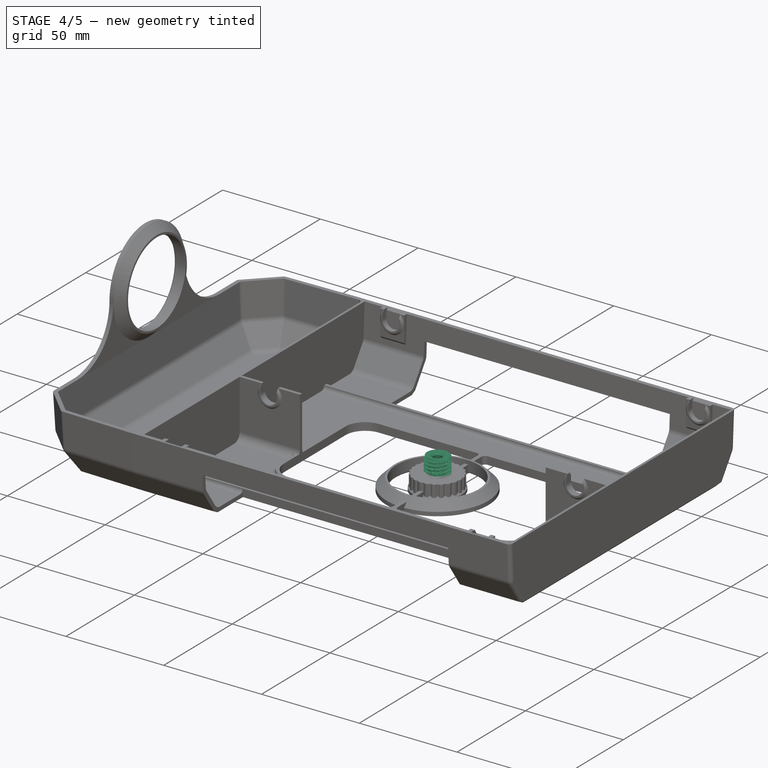
[diagram: stage 4 of 5 — iso view after this stage's code; geometry added in this stage tinted green]
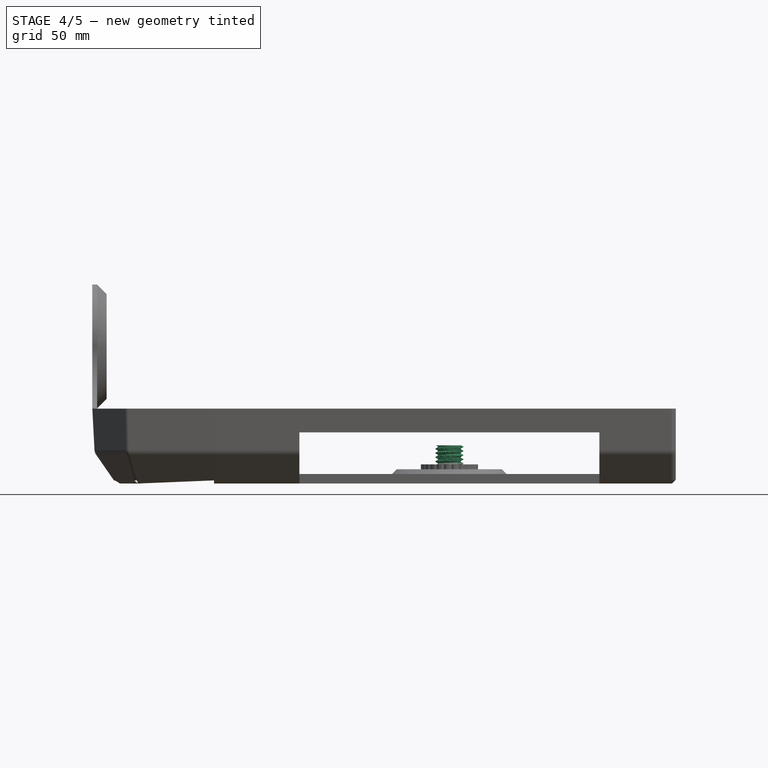
[diagram: stage 4 of 5 — front view after this stage's code; geometry added in this stage tinted green]
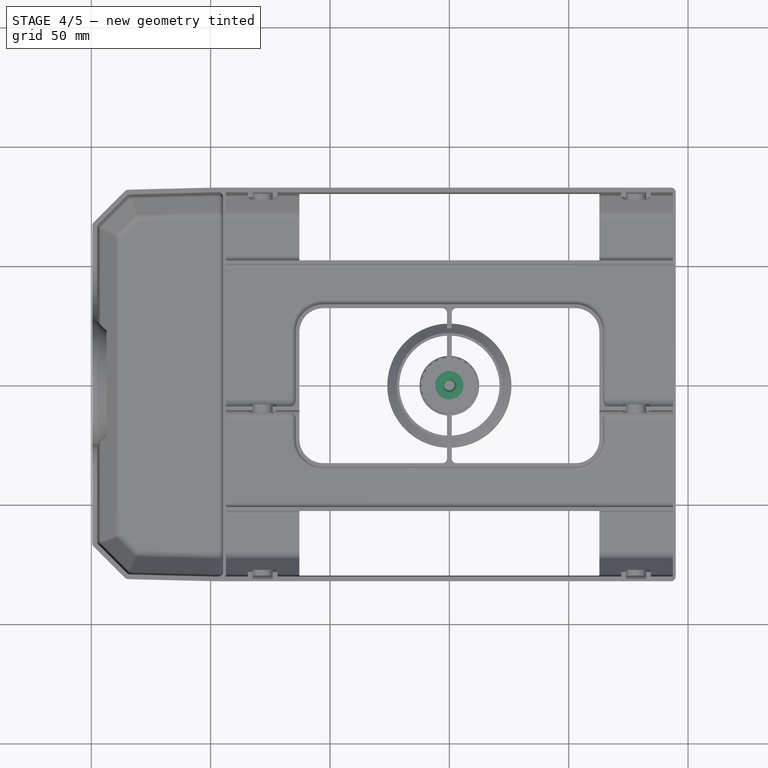
[diagram: stage 4 of 5 — top view after this stage's code; geometry added in this stage tinted green]
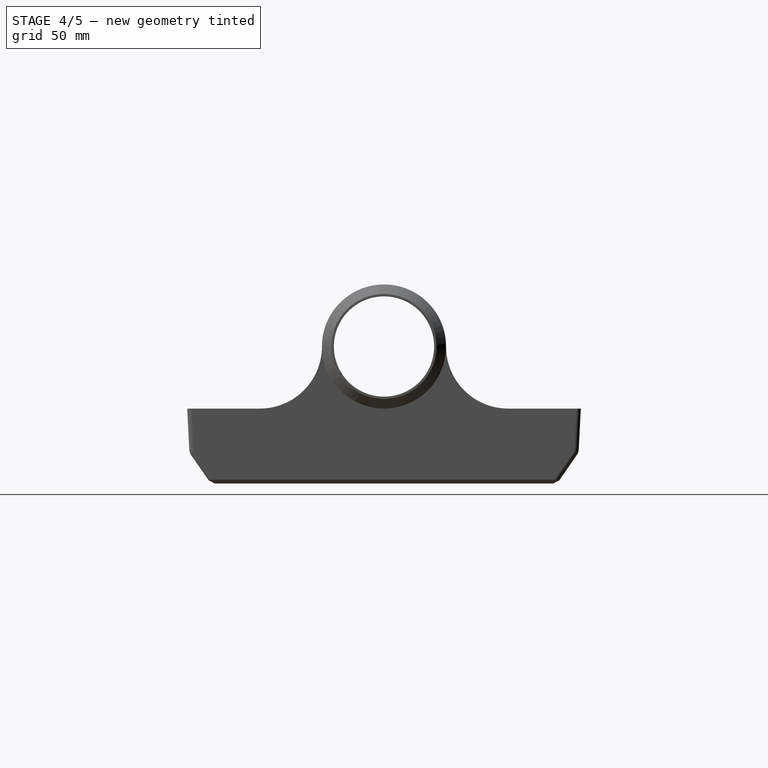
[diagram: stage 4 of 5 — right view after this stage's code; geometry added in this stage tinted green]
FEATURE [PartDesign::Pocket] Pocket001
  BaseFeature = -> Chamfer
  Direction = (0,0,-1)
  Length = 5
  Length2 = 5
  Profile = -> Sketch040
  ReferenceAxis = -> Sketch040 [N_Axis]
  Refine = true
  Reversed = true
  SideType = 0
  Suppressed = false
  Type = 1
  Type2 = 0
FEATURE [PartDesign::PolarPattern] PolarPattern
  Angle = 360
  Axis = -> Sketch040 [N_Axis]
  BaseFeature = -> Pocket001
  Mode = 0
  Occurrences = 23
  Offset = 120
  Originals = -> [Pocket001]
  Refine = true
  SpacingPattern = [0]
  Spacings = [-1,-1,-1,-1,-1,-1,-1,-1,-1,-1,-1,-1,-1,-1,-1,-1,-1,-1,-1,-1,-1,-1]
  Suppressed = false
  TransformMode = 0
  expr: Occurrences = floor(360 / <<Sketch040>>.Constraints.Angle * 3 / 4)
FEATURE [PartDesign::AdditivePipe] AdditivePipe
  AuxiliaryCurvilinear = true
  AuxiliarySpineTangent = false
  BaseFeature = -> PolarPattern
  Binormal = (0,0,0)
  Mode = 2
  Profile = -> VThreadProfile
  Refine = true
  Spine = -> Helix
  SpineTangent = false
  Suppressed = false
  Transformation = 0
  Transition = 0
FEATURE [PartDesign::Pocket] Pocket
  BaseFeature = -> AdditivePipe
  Direction = (0,0,-1)
  Length = 5
  Length2 = 5
  Profile = -> Sketch039
  ReferenceAxis = -> Sketch039 [N_Axis]
  Refine = true
  Reversed = true
  SideType = 0
  Suppressed = false
  Type = 1
  Type2 = 0
FEATURE [PartDesign::Chamfer] Chamfer010
  Angle = 45
  Base = -> Pocket [Face96]
  BaseFeature = -> Pocket
  ChamferType = 0
  FlipDirection = false
  Refine = true
  Size = 0.8
  Size2 = 1
  SupportTransform = false
  Suppressed = false
  UseAllEdges = false
FEATURE [PartDesign::Body] Body011  label="PC_Bolt_M6"
  AllowCompound = false
  Group = -> [Clone002,VThreadProfile001,Helix001,SubtractivePipe,Chamfer011]
  Origin = -> Origin011
  Tip = -> Chamfer011
FEATURE [PartDesign::FeatureBase] Clone003
  BaseFeature = -> Body
  Suppressed = false
FEATURE [Part::Part2DObjectPython] VThreadProfile002  # Draft 2D object (typed FeaturePython)
  Area = 18.2738
  Closed = true
  Continuity = C2
  Deviation = 0.1
  Height = 6
  Helix = Helix002
  Instructions = <same value as first occurrence — deduplicated (x4 in doc)>
  InternalOrExternal = 0
  MajorDiameter = 5.03526
  MajorDiameterFinal = 5.15526
  MakeFace = true
  MinorDiameter = 4.459
  MinorDiameterFinal = 4.579
  Parameterization = 1
  Pitch = 0.5
  Points = (36) [(2.25462,0.398115,0),(2.15105,0.7841,0),(1.98193,1.14619,0),(1.75243,1.47336,0),(1.46953,1.75564,0),(1.14186,1.98443,0),(0.779398,2.15275,0),+29 more]
  Presets = 55
  Quality = 20
  ThreadCount = 12
  Tolerance = 0.12
  Variants = 0
  Version = 1.96
  d_delta = 0.576259
  external2S_data = <same value as first occurrence — deduplicated (x4 in doc)>
  external3S_data = <same value as first occurrence — deduplicated (x4 in doc)>
  external45_data = <same value as first occurrence — deduplicated (x4 in doc)>
  external_data = <same value as first occurrence — deduplicated (x4 in doc)>
  internal2S_data = <same value as first occurrence — deduplicated (x4 in doc)>
  internal3S_data = <same value as first occurrence — deduplicated (x4 in doc)>
  internal45_data = <same value as first occurrence — deduplicated (x4 in doc)>
  internal_data = <same value as first occurrence — deduplicated (x4 in doc)>
  preset_names = <blob: 3959 chars omitted>
  presets_data = <same value as first occurrence — deduplicated (x4 in doc)>
FEATURE [Part::Helix] Helix002
  Angle = 0
  AttacherType = Attacher::AttachEngine3D
  Height = 6
  Length = 75.6366
  LocalCoord = 0
  Pitch = 0.5
  Radius = 1
  SegmentLength = 1
  Style = 0
  expr: AttachmentOffset = VThreadProfile002.AttachmentOffset
  expr: AttachmentSupport = VThreadProfile002.AttachmentSupport
  expr: Height = VThreadProfile002.ThreadCount * VThreadProfile002.Pitch
  expr: MapMode = VThreadProfile002.MapMode
  expr: MapPathParameter = VThreadProfile002.MapPathParameter
  expr: MapReversed = VThreadProfile002.MapReversed
  expr: Pitch = VThreadProfile002.Pitch
  expr: SegmentLength = 1
FEATURE [PartDesign::SubtractivePipe] SubtractivePipe001
  AuxiliaryCurvilinear = true
  AuxiliarySpineTangent = false
  BaseFeature = -> Clone003
  Binormal = (0,0,0)
  Mode = 2
  Profile = -> VThreadProfile002
  Refine = true
  Spine = -> Helix002
  SpineTangent = false
  Suppressed = false
  Transformation = 0
  Transition = 0
FEATURE [PartDesign::Chamfer] Chamfer013
  Angle = 45
  Base = -> Pad026 [Edge2]
  BaseFeature = -> Pad026
  ChamferType = 0
  FlipDirection = false
  Refine = true
  Size = 0.733333
  Size2 = 1
  SupportTransform = false
  Suppressed = false
  UseAllEdges = false
  expr: Size = <<Chamfer>>.Size
FEATURE [Part::Part2DObjectPython] VThreadProfile003  # Draft 2D object (typed FeaturePython)
  Area = 101.538
  Closed = true
  Continuity = C2
  Deviation = 0.1
  Height = 8
  Helix = Helix003
  Instructions = <same value as first occurrence — deduplicated (x4 in doc)>
  InternalOrExternal = 0
  MajorDiameter = 12.1229
  MajorDiameterFinal = 12.5229
  MakeFace = true
  MinorDiameter = 10.106
  MinorDiameterFinal = 10.506
  Parameterization = 1
  Pitch = 1.75
  Points = (36) [(5.17297,0.91343,0),(4.93533,1.79903,0),(4.54732,2.62981,0),(4.02075,3.38047,0),(3.37168,4.02813,0),(2.61987,4.55305,0),(1.78824,4.93925,0),+29 more]
  Presets = 22
  Quality = 20
  ThreadCount = 4.57143
  Tolerance = 0.4
  Variants = 0
  Version = 1.96
  d_delta = 2.01691
  external2S_data = <same value as first occurrence — deduplicated (x4 in doc)>
  external3S_data = <same value as first occurrence — deduplicated (x4 in doc)>
  external45_data = <same value as first occurrence — deduplicated (x4 in doc)>
  external_data = <same value as first occurrence — deduplicated (x4 in doc)>
  internal2S_data = <same value as first occurrence — deduplicated (x4 in doc)>
  internal3S_data = <same value as first occurrence — deduplicated (x4 in doc)>
  internal45_data = <same value as first occurrence — deduplicated (x4 in doc)>
  internal_data = <same value as first occurrence — deduplicated (x4 in doc)>
  preset_names = <blob: 3959 chars omitted>
  presets_data = <same value as first occurrence — deduplicated (x4 in doc)>
  expr: Height = <<Pad026>>.Length
FEATURE [PartDesign::Pocket] Pocket002
  BaseFeature = -> Chamfer013
  Direction = (0,0,-1)
  Length = 5
  Length2 = 5
  Profile = -> Sketch042
  ReferenceAxis = -> Sketch042 [N_Axis]
  Refine = true
  Reversed = true
  SideType = 0
  Suppressed = false
  Type = 1
  Type2 = 0
FEATURE [PartDesign::PolarPattern] PolarPattern001
  Angle = 360
  Axis = -> Sketch042 [N_Axis]
  BaseFeature = -> Pocket002
  Mode = 0
  Occurrences = 23
  Offset = 120
  Originals = -> [Pocket002]
  Refine = true
  SpacingPattern = [0]
  Spacings = [-1,-1,-1,-1,-1,-1,-1,-1,-1,-1,-1,-1,-1,-1,-1,-1,-1,-1,-1,-1,-1,-1]
  Suppressed = false
  TransformMode = 0
  expr: Occurrences = <<PolarPattern>>.Occurrences
FEATURE [Part::Helix] Helix003
  Angle = 0
  AttacherType = Attacher::AttachEngine3D
  Height = 8
  Length = 29.8164
  LocalCoord = 0
  Pitch = 1.75
  Radius = 1
  SegmentLength = 1
  Style = 0
  expr: AttachmentOffset = VThreadProfile003.AttachmentOffset
  expr: AttachmentSupport = VThreadProfile003.AttachmentSupport
  expr: Height = VThreadProfile003.ThreadCount * VThreadProfile003.Pitch
  expr: MapMode = VThreadProfile003.MapMode
  expr: MapPathParameter = VThreadProfile003.MapPathParameter
  expr: MapReversed = VThreadProfile003.MapReversed
  expr: Pitch = VThreadProfile003.Pitch
  expr: SegmentLength = 1
FEATURE [PartDesign::SubtractivePipe] SubtractivePipe002
  AuxiliaryCurvilinear = true
  AuxiliarySpineTangent = false
  BaseFeature = -> PolarPattern001
  Binormal = (0,0,0)
  Mode = 2
  Profile = -> VThreadProfile003
  Refine = true
  Spine = -> Helix003
  SpineTangent = false
  Suppressed = false
  Transformation = 0
  Transition = 0
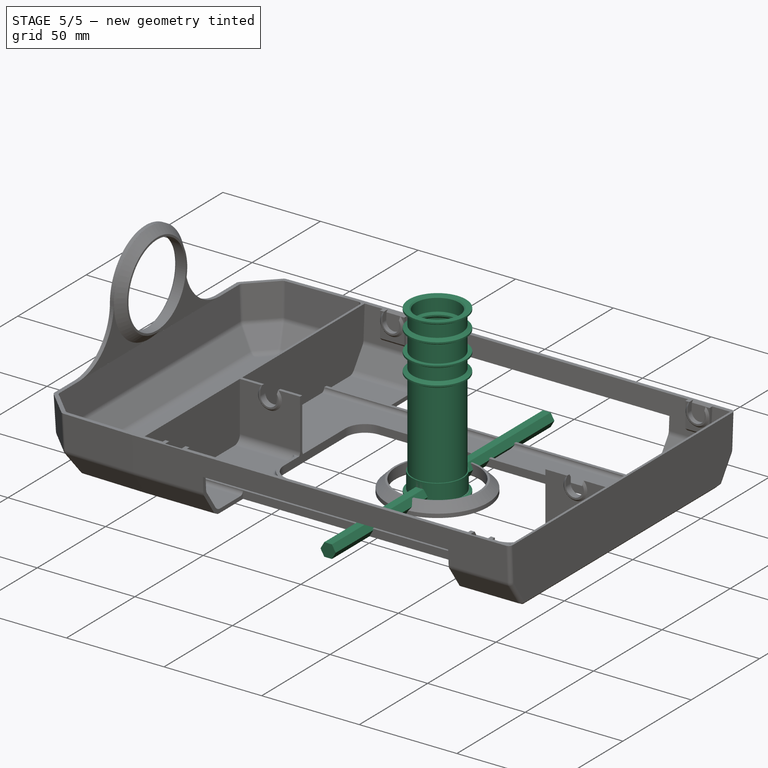
[diagram: stage 5 of 5 — iso view after this stage's code; geometry added in this stage tinted green]
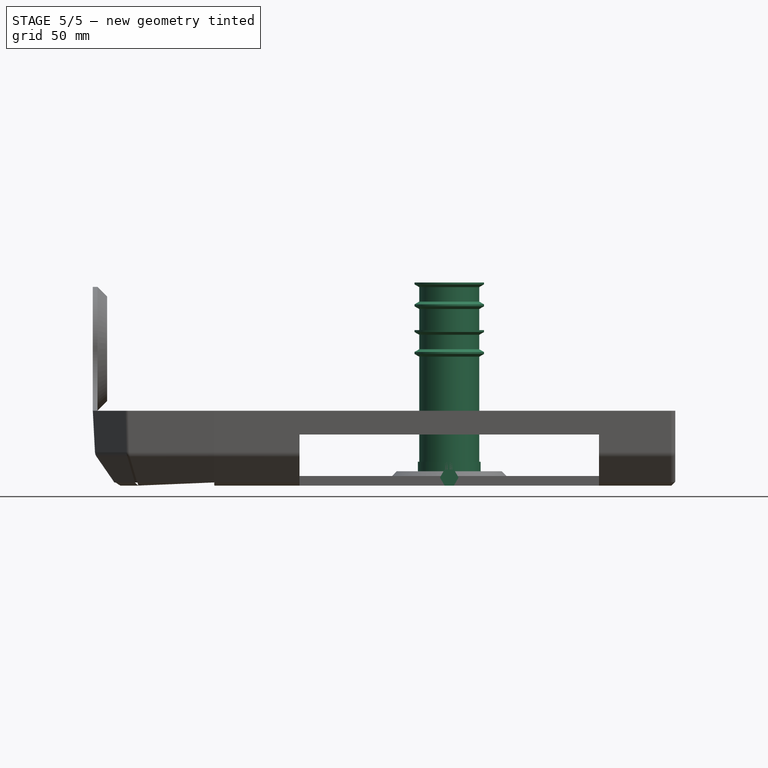
[diagram: stage 5 of 5 — front view after this stage's code; geometry added in this stage tinted green]
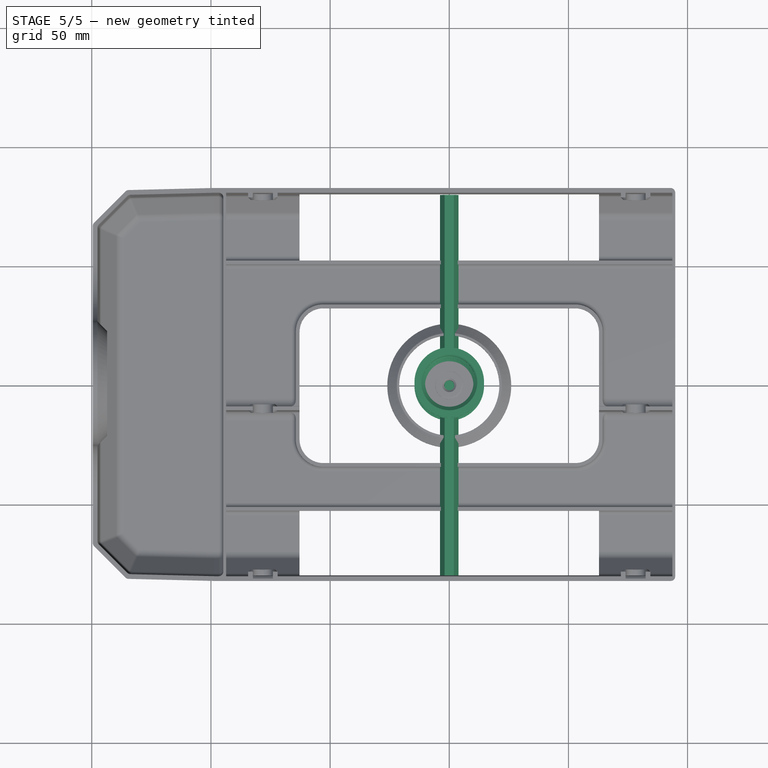
[diagram: stage 5 of 5 — top view after this stage's code; geometry added in this stage tinted green]
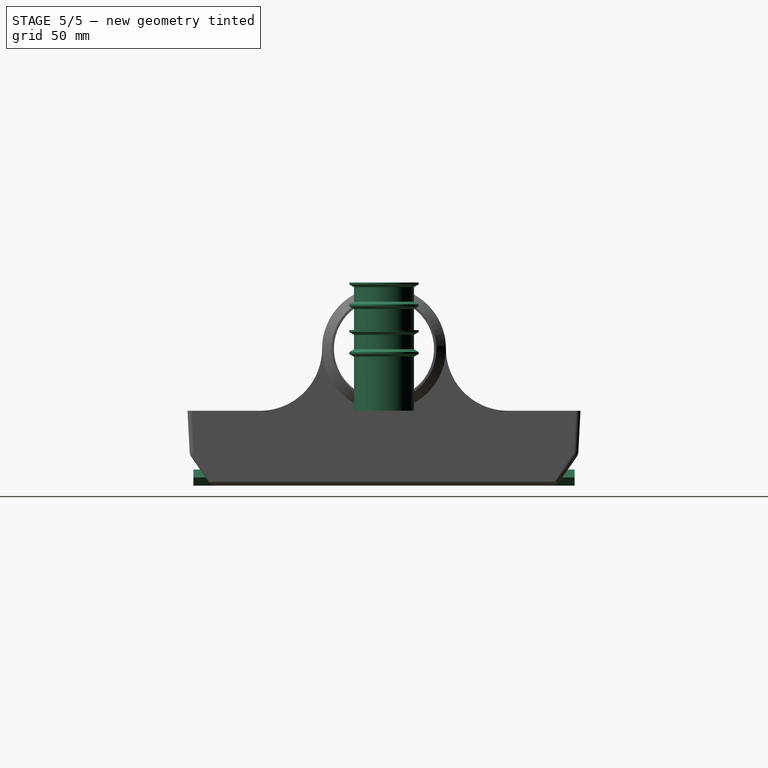
[diagram: stage 5 of 5 — right view after this stage's code; geometry added in this stage tinted green]
FEATURE [Sketcher::SketchObject] Sketch007  label="SHT_YZ"
  ArcFitTolerance = 1e-06
  AttachmentSupport = -> [YZ_Plane002]
  ExternalTypes = [0]
  FullyConstrained = true
  MakeInternals = false
  MapMode = 5
  Placement = pos=(0,0,0) rot=(0.57735,0.57735,0.57735;2.0944rad)
  _ExternalGeoVersion = 0
  expr: Constraints[13] = <<Literals>>.BaseThickness
  expr: Constraints[32] = <<Literals>>.RollerAxisHeight + <<Literals>>.RollerAxisRadius + 0.4 mm
  expr: Constraints[55] = <<Literals>>.BaseThickness
  sketch-geometry (19):
    g0: LineSegment StartX=-72.5 StartY=0 StartZ=0 EndX=72.5 EndY=0 EndZ=0
    g1: LineSegment StartX=-72.5 StartY=0 StartZ=0 EndX=-81.5 EndY=13 EndZ=0
    g2: LineSegment StartX=-71.4521 StartY=2 StartZ=0 EndX=71.4521 EndY=2 EndZ=0
    g3: LineSegment StartX=81.5 StartY=13 StartZ=0 EndX=72.5 EndY=0 EndZ=0
    g4: LineSegment [constr] StartX=-71.4521 StartY=2 StartZ=0 EndX=-73.0965 EndY=0.86158 EndZ=0
    g5: LineSegment [constr] StartX=-71.4521 StartY=2 StartZ=0 EndX=-71.4521 EndY=0 EndZ=0
    g6: LineSegment [constr] StartX=71.4521 StartY=2 StartZ=0 EndX=73.0965 EndY=0.86158 EndZ=0
    g7: LineSegment StartX=-71.4521 StartY=2 StartZ=0 EndX=-79.5325 EndY=13.6716 EndZ=0
    g8: LineSegment StartX=71.4521 StartY=2 StartZ=0 EndX=79.5325 EndY=13.6716 EndZ=0
    g9: LineSegment StartX=81.5 StartY=13 StartZ=0 EndX=82.4643 EndY=31.4 EndZ=0
    g10: LineSegment StartX=-81.5 StartY=13 StartZ=0 EndX=-82.4643 EndY=31.4 EndZ=0
    g11: LineSegment StartX=-79.5325 StartY=13.6716 StartZ=0 EndX=-80.4616 EndY=31.4 EndZ=0
    g12: LineSegment StartX=79.5325 StartY=13.6716 StartZ=0 EndX=80.4616 EndY=31.4 EndZ=0
    g13: LineSegment StartX=82.4643 StartY=31.4 StartZ=0 EndX=80.4616 EndY=31.4 EndZ=0
    g14: LineSegment StartX=-80.4616 StartY=31.4 StartZ=0 EndX=-82.4643 EndY=31.4 EndZ=0
    g15: LineSegment StartX=-80.4616 StartY=31.4 StartZ=0 EndX=80.4616 EndY=31.4 EndZ=0
    g16: LineSegment StartX=0 StartY=31.4 StartZ=0 EndX=0 EndY=0 EndZ=0
    g17: LineSegment StartX=-79.5325 StartY=13.6716 StartZ=0 EndX=79.5325 EndY=13.6716 EndZ=0
    g18: LineSegment [constr] StartX=-80.4616 StartY=31.4 StartZ=0 EndX=-82.4588 EndY=31.2953 EndZ=0
  constraints (58):
    c: PointOnObject(g0,g-1)
    c: DistanceX(g0,g0) = 145
    c: Coincident(g0,g1)
    c: Horizontal(g2)
    c: Coincident(g3,g0)
    c: Angle(g0,g1) = 2.17634
    c: Equal(g3,g1)
    c: Coincident(g4,g2)
    c: PointOnObject(g4,g1)
    c: Perpendicular(g1,g4)
    c: Coincident(g5,g2)
    c: PointOnObject(g5,g0)
    c: Vertical(g5)
    c: DistanceY(g0,g2) = 2
    c: Coincident(g6,g2)
    c: PointOnObject(g6,g3)
    c: Perpendicular(g3,g6)
    c: Equal(g6,g4)
    c: Coincident(g7,g2)
    c: Coincident(g8,g2)
    c: Coincident(g9,g3)
    c: Coincident(g10,g1)
    c: Coincident(g11,g7)
    c: Coincident(g12,g8)
    c: Parallel(g8,g3)
    c: Parallel(g12,g9)
    c: Parallel(g7,g1)
    c: Parallel(g11,g10)
    c: Coincident(g13,g9)
    c: Coincident(g13,g12)
    c: Coincident(g14,g11)
    c: Coincident(g14,g10)
    c: DistanceY(g2,g10) = 29.4
    c: Coincident(g15,g11)
    c: Coincident(g15,g12)
    c: Horizontal(g15)
    c: Angle(g0,g10) = 1.62316
    c: PointOnObject(g16,g15)
    c: Symmetric(g0,g0,g16)
    c: Symmetric(g11,g12,g16)
    c: Symmetric(g8,g7,g16)
    c: Coincident(g16,g-1)  '__ANCHOR__'
    c: Distance(g1) = 15.8114
    c: DistanceX(g10,g9) = 164.929  'OuterWidth_Top'
    c: DistanceY(g0,g1) = 13
    c: DistanceX(g7,g8) = 159.065  'InnerWidth_Middle'
    c: DistanceX(g2,g2) = 142.904  'InnerWidth_Bottom'
    c: DistanceX(g1,g3) = 163
    c: Coincident(g17,g7)
    c: Coincident(g17,g8)
    c: Horizontal(g13)
    c: Horizontal(g14)
    c: Coincident(g18,g11)
    c: PointOnObject(g18,g10)
    c: Perpendicular(g10,g18)
    c: Distance(g18) = 2
    c: Equal(g4,g18)
    c: DistanceX(g11,g12) = 160.923  'InnerWidth_Top'
FEATURE [Sketcher::SketchObject] Sketch006
  ArcFitTolerance = 1e-06
  AttachmentSupport = -> [YZ_Plane002]
  ExternalTypes = [0]
  FullyConstrained = true
  MakeInternals = false
  MapMode = 5
  Placement = pos=(0,0,0) rot=(0.57735,0.57735,0.57735;2.0944rad)
  _ExternalGeoVersion = 0
  sketch-geometry (10):
    g0: LineSegment StartX=-82.4488 StartY=32.9877 StartZ=0 EndX=-80.4655 EndY=9.17018 EndZ=0
    g1: ArcOfCircle CenterX=-70.5 CenterY=10 CenterZ=0 NormalX=0 NormalY=0 NormalZ=1 AngleXU=0 Radius=10 StartAngle=3.22467 EndAngle=4.71239
    g2: LineSegment StartX=-70.5 StartY=0 StartZ=0 EndX=70.5 EndY=0 EndZ=0
    g3: LineSegment StartX=80.4655 StartY=9.17018 StartZ=0 EndX=82.4488 EndY=32.9877 EndZ=0
    g4: ArcOfCircle CenterX=70.5 CenterY=10 CenterZ=0 NormalX=0 NormalY=0 NormalZ=1 AngleXU=0 Radius=10 StartAngle=4.71239 EndAngle=6.20011
    g5: LineSegment [constr] StartX=-80.4655 StartY=9.17018 StartZ=0 EndX=80.4655 EndY=9.17018 EndZ=0
    g6: LineSegment [constr] StartX=-70.5 StartY=10 StartZ=0 EndX=70.5 EndY=10 EndZ=0
    g7: LineSegment [constr] StartX=-6.6e-15 StartY=10 StartZ=0 EndX=0 EndY=0 EndZ=0
    g8: LineSegment [constr] StartX=-80.4655 StartY=9.17018 StartZ=0 EndX=-70.5 EndY=10 EndZ=0
    g9: LineSegment [constr] StartX=-70.5 StartY=0 StartZ=0 EndX=-70.5 EndY=10 EndZ=0
  constraints (24):
    c: Radius(g1) = 10
    c: Equal(g1,g4)
    c: Distance(g0) = 23.9
    c: DistanceX(g2,g2) = 141
    c: Equal(g3,g0)
    c: Coincident(g5,g0)
    c: Coincident(g5,g3)
    c: Horizontal(g5)
    c: Tangent(g2,g1) = -1.5708
    c: Tangent(g1,g0) = -1.5708
    c: Tangent(g4,g2) = -1.5708
    c: Tangent(g4,g3) = -1.5708
    c: Coincident(g6,g1)
    c: Coincident(g6,g4)
    c: Horizontal(g6)
    c: Symmetric(g6,g6,g7)
    c: Symmetric(g2,g2,g7)
    c: Coincident(g8,g0)
    c: Coincident(g8,g1)
    c: Coincident(g9,g1)
    c: Coincident(g9,g1)
    c: Angle(g8,g9) = 1.48772
    c: Coincident(g7,g-1)  '__ANCHOR__'
    c: DistanceX(g0,g3) = 160.931
FEATURE [Sketcher::SketchObject] Sketch005  label="SHT_XZ"
  ArcFitTolerance = 1e-06
  AttachmentSupport = -> [XZ_Plane002]
  ExternalGeometry = -> [Sketch007]
  ExternalTypes = [0]
  FullyConstrained = true
  MakeInternals = false
  MapMode = 5
  Placement = pos=(0,0,0) rot=(1,0,0;1.5708rad)
  _ExternalGeoVersion = 0
  expr: .Constraints.WingWidth = (<<Literals>>.RollerRadius + <<Literals>>.RollerEdge + <<Literals>>.RollerSeparation) * 2
  expr: Constraints[3] = <<Literals>>.RollerRadius * 2
  expr: Constraints[48] = <<Literals>>.RollerAxisHeight
  expr: Constraints[51] = <<Literals>>.BaseThickness
  sketch-geometry (23):
    g0: Circle CenterX=7e-16 CenterY=108 CenterZ=0 NormalX=0 NormalY=0 NormalZ=1 AngleXU=0 Radius=100
    g1: Circle [constr] CenterX=7e-16 CenterY=104.487 CenterZ=0 NormalX=0 NormalY=0 NormalZ=1 AngleXU=0 Radius=97.5
    g2: Circle CenterX=78.2161 CenterY=27 CenterZ=0 NormalX=0 NormalY=0 NormalZ=1 AngleXU=0 Radius=12.6
    g3: Circle CenterX=-78.2161 CenterY=27 CenterZ=0 NormalX=0 NormalY=0 NormalZ=1 AngleXU=0 Radius=12.6
    g4: LineSegment [constr] StartX=-78.2161 StartY=27 StartZ=0 EndX=78.2161 EndY=27 EndZ=0
    g5: LineSegment StartX=-93.6161 StartY=2 StartZ=0 EndX=93.6161 EndY=2 EndZ=0
    g6: LineSegment StartX=-90.8161 StartY=2 StartZ=0 EndX=-90.8161 EndY=27 EndZ=0
    g7: LineSegment StartX=90.8161 StartY=2 StartZ=0 EndX=90.8161 EndY=27 EndZ=0
    g8: LineSegment [constr] StartX=7e-16 StartY=108 StartZ=0 EndX=0 EndY=2 EndZ=0
    g9: GeomPoint [constr] X=0 Y=8 Z=0
    g10: GeomPoint [constr] X=0 Y=6.9871 Z=0
    g11: Circle [constr] CenterX=6e-16 CenterY=89.5532 CenterZ=0 NormalX=0 NormalY=0 NormalZ=1 AngleXU=0 Radius=87.5532
    g12: LineSegment [constr] StartX=0 StartY=2 StartZ=0 EndX=0 EndY=0 EndZ=0
    g13: LineSegment StartX=-93.6161 StartY=0 StartZ=0 EndX=93.6161 EndY=0 EndZ=0
    g14: LineSegment StartX=-78.2161 StartY=27 StartZ=0 EndX=-78.2161 EndY=2 EndZ=0
    g15: LineSegment StartX=78.2161 StartY=27 StartZ=0 EndX=78.2161 EndY=2 EndZ=0
    g16: Circle CenterX=-78.2161 CenterY=27 CenterZ=0 NormalX=0 NormalY=0 NormalZ=1 AngleXU=0 Radius=15.4
    g17: LineSegment StartX=-93.6161 StartY=27 StartZ=0 EndX=-93.6161 EndY=0 EndZ=0
    g18: LineSegment StartX=93.6161 StartY=27 StartZ=0 EndX=93.6161 EndY=0 EndZ=0
    g19: Circle CenterX=78.2161 CenterY=27 CenterZ=0 NormalX=0 NormalY=0 NormalZ=1 AngleXU=0 Radius=15.4
    g20: GeomPoint X=-78.2161 Y=11.6 Z=0
    g21: LineSegment StartX=62.8161 StartY=2 StartZ=0 EndX=62.8161 EndY=27 EndZ=0
    g22: LineSegment StartX=-62.8161 StartY=2 StartZ=0 EndX=-62.8161 EndY=27 EndZ=0
  constraints (65):
    c: Diameter(g0) = 200
    c: Diameter(g1) = 195
    c: Tangent(g2,g0)
    c: Diameter(g3) = 25.2
    c: Coincident(g4,g3)
    c: Coincident(g4,g2)
    c: Horizontal(g4)
    c: Tangent(g3,g0)
    c: Equal(g3,g2)
    c: Tangent(g2,g1)
    c: DistanceX(g4,g4) = 156.432  'AxisDistance'
    c: Horizontal(g5)
    c: Vertical(g6)
    c: Vertical(g7)
    c: Tangent(g6,g3) = 1.5708
    c: Tangent(g7,g2) = -1.5708
    c: Coincident(g8,g0)
    c: Symmetric(g5,g5,g8)
    c: PointOnObject(g1,g8)
    c: PointOnObject(g9,g0)
    c: PointOnObject(g10,g1)
    c: PointOnObject(g10,g8)
    c: PointOnObject(g9,g8)
    c: DistanceY(g8,g9) = 6
    c: DistanceY(g8,g10) = 4.9871
    c: PointOnObject(g11,g8)
    c: PointOnObject(g8,g11)
    c: Diameter(g11) = 175.106
    c: Tangent(g11,g3)
    c: Coincident(g12,g8)
    c: Vertical(g12)
    c: Coincident(g12,g-1)  '__ANCHOR__'
    c: Horizontal(g13)
    c: PointOnObject(g12,g13)
    c: Coincident(g14,g3)
    c: PointOnObject(g14,g5)
    c: Vertical(g14)
    c: Coincident(g15,g2)
    c: PointOnObject(g15,g5)
    c: Vertical(g15)
    c: Coincident(g16,g3)
    c: Diameter(g16) = 30.8  'WingWidth'
    c: Vertical(g17)
    c: Vertical(g18)
    c: Coincident(g19,g2)
    c: Equal(g19,g16)
    c: Tangent(g17,g16) = -1.5708
    c: Tangent(g18,g19) = 1.5708
    c: DistanceY(g14,g14) = 25
    c: PointOnObject(g20,g14)
    c: PointOnObject(g20,g16)
    c: DistanceY(g13,g5) = 2
    c: Coincident(g17,g13)
    c: Coincident(g13,g18)
    c: PointOnObject(g5,g18)
    c: PointOnObject(g7,g5)
    c: PointOnObject(g5,g17)
    c: PointOnObject(g6,g5)
    c: PointOnObject(g21,g5)
    c: Vertical(g21)
    c: PointOnObject(g22,g5)
    c: Vertical(g22)
    c: Tangent(g22,g16) = -1.5708
    c: Tangent(g21,g19) = 1.5708
    c: DistanceX(g13,g13) = 187.232  'BaseWidth'
FEATURE [PartDesign::Body] Body002  label="SpoolHolderTemplates"
  AllowCompound = false
  Group = -> [Sketch006,Sketch007,Sketch005]
  Origin = -> Origin002
FEATURE [Sketcher::SketchObject] Sketch008
  ArcFitTolerance = 1e-06
  AttachmentSupport = -> [XY_Plane003]
  ExternalTypes = [0]
  FullyConstrained = true
  MakeInternals = false
  MapMode = 5
  _ExternalGeoVersion = 0
  expr: Constraints[2] = .Constraints.Ri + 4 mm
  sketch-geometry (2):
    g0: Circle CenterX=0 CenterY=0 CenterZ=0 NormalX=0 NormalY=0 NormalZ=1 AngleXU=0 Radius=11.15
    g1: Circle CenterX=0 CenterY=0 CenterZ=0 NormalX=0 NormalY=0 NormalZ=1 AngleXU=0 Radius=13.15
  constraints (4):
    c: Coincident(g0,g-1)
    c: Coincident(g1,g0)
    c: Diameter(g1) = 26.3
    c: Diameter(g0) = 22.3  'Ri'
FEATURE [PartDesign::Pad] Pad002
  Direction = (0,0,1)
  Length = 10
  Length2 = 10
  Profile = -> Sketch008
  ReferenceAxis = -> Sketch008 [N_Axis]
  Refine = true
  SideType = 0
  Suppressed = false
  Type = 0
  Type2 = 0
FEATURE [PartDesign::Chamfer] Chamfer003
  Angle = 45
  Base = -> Pad002 [Edge5,Edge6]
  BaseFeature = -> Pad002
  ChamferType = 0
  FlipDirection = false
  Refine = true
  Size = 0.6
  Size2 = 1
  SupportTransform = false
  Suppressed = false
  UseAllEdges = false
FEATURE [Sketcher::SketchObject] Sketch012  label="FrontRodCaddy"
  ArcFitTolerance = 1e-06
  AttachmentOffset = pos=(0,0,80.4616) rot=(0,0,1;0rad)
  AttachmentSupport = -> [XZ_Plane004]
  ExternalGeometry = -> [ShapeBinder002,ShapeBinder003]
  ExternalTypes = [0]
  FullyConstrained = true
  MakeInternals = false
  MapMode = 5
  Placement = pos=(0,-80.4616,1.79e-14) rot=(1,0,0;1.5708rad)
  _ExternalGeoVersion = 0
  expr: .AttachmentOffset.Base.z = <<SHT_YZ>>.Constraints.InnerWidth_Top / 2
  expr: Constraints[19] = <<Literals>>.RollerAxisRadius * 3.5
  expr: Constraints[4] = <<Literals>>.RollerAxisRadius + 0.2 mm
  sketch-geometry (16):
    g0: ArcOfCircle CenterX=-78.2161 CenterY=27 CenterZ=0 NormalX=0 NormalY=0 NormalZ=1 AngleXU=0 Radius=4.2 StartAngle=3.14159 EndAngle=6.28319
    g1: LineSegment StartX=-82.4161 StartY=27 StartZ=0 EndX=-82.4161 EndY=31.4 EndZ=0
    g2: LineSegment StartX=-74.0161 StartY=27 StartZ=0 EndX=-74.0161 EndY=31.4 EndZ=0
    g3: LineSegment StartX=-82.4161 StartY=31.4 StartZ=0 EndX=-84.4161 EndY=31.4 EndZ=0
    g4: LineSegment StartX=-84.4161 StartY=31.4 StartZ=0 EndX=-84.4161 EndY=17.4 EndZ=0
    g5: LineSegment StartX=-74.0161 StartY=31.4 StartZ=0 EndX=-72.0161 EndY=31.4 EndZ=0
    g6: LineSegment StartX=-72.0161 StartY=31.4 StartZ=0 EndX=-72.0161 EndY=17.4 EndZ=0
    g7: LineSegment StartX=-72.0161 StartY=17.4 StartZ=0 EndX=-84.4161 EndY=17.4 EndZ=0
    g8: ArcOfCircle CenterX=78.2161 CenterY=27 CenterZ=0 NormalX=0 NormalY=0 NormalZ=1 AngleXU=0 Radius=4.2 StartAngle=3.14159 EndAngle=6.28319
    g9: LineSegment StartX=82.4161 StartY=27 StartZ=0 EndX=82.4161 EndY=31.4 EndZ=0
    g10: LineSegment StartX=74.0161 StartY=27 StartZ=0 EndX=74.0161 EndY=31.4 EndZ=0
    g11: LineSegment StartX=74.0161 StartY=31.4 StartZ=0 EndX=72.0161 EndY=31.4 EndZ=0
    g12: LineSegment StartX=82.4161 StartY=31.4 StartZ=0 EndX=84.4161 EndY=31.4 EndZ=0
    g13: LineSegment StartX=84.4161 StartY=31.4 StartZ=0 EndX=84.4161 EndY=17.4 EndZ=0
    g14: LineSegment StartX=72.0161 StartY=31.4 StartZ=0 EndX=72.0161 EndY=17.4 EndZ=0
    g15: LineSegment StartX=72.0161 StartY=17.4 StartZ=0 EndX=84.4161 EndY=17.4 EndZ=0
  constraints (44):
    c: Vertical(g1)
    c: Vertical(g2)
    c: Tangent(g2,g0) = -1.5708
    c: Tangent(g0,g1) = 1.5708
    c: Radius(g0) = 4.2
    c: Equal(g1,g2)
    c: Coincident(g3,g1)
    c: Horizontal(g3)
    c: Coincident(g4,g3)
    c: Vertical(g4)
    c: Coincident(g5,g2)
    c: Horizontal(g5)
    c: Coincident(g6,g5)
    c: Vertical(g6)
    c: Coincident(g7,g6)
    c: Horizontal(g7)
    c: Equal(g3,g5)
    c: DistanceX(g3,g3) = 2
    c: Coincident(g4,g7)
    c: DistanceY(g4,g4) = 14
    c: Equal(g8,g0)
    c: Vertical(g9)
    c: Vertical(g10)
    c: Tangent(g8,g10) = 1.5708
    c: Tangent(g8,g9) = -1.5708
    c: Equal(g9,g10)
    c: Equal(g10,g2)
    c: Coincident(g11,g10)
    c: Horizontal(g11)
    c: Coincident(g12,g9)
    c: Horizontal(g12)
    c: Coincident(g13,g12)
    c: Vertical(g13)
    c: Coincident(g14,g11)
    c: Vertical(g14)
    c: Coincident(g15,g14)
    c: Coincident(g15,g13)
    c: Horizontal(g15)
    c: Equal(g12,g11)
    c: Equal(g11,g5)
    c: Equal(g6,g14)
    c: PointOnObject(g-5,g5)
    c: Coincident(g8,g-4)
    c: Coincident(g0,g-3)
FEATURE [Sketcher::SketchObject] Sketch013  label="CentralRollerSpacers"
  ArcFitTolerance = 1e-06
  AttachmentOffset = pos=(0,0,10) rot=(0,0,1;0rad)
  AttachmentSupport = -> [XZ_Plane004]
  ExternalGeometry = -> [Sketch012]
  ExternalTypes = [0]
  FullyConstrained = true
  MakeInternals = false
  MapMode = 5
  Placement = pos=(0,-10,2.2e-15) rot=(1,0,0;1.5708rad)
  _ExternalGeoVersion = 0
  expr: .AttachmentOffset.Base.z = <<SHF_MiddleWing>>.AttachmentOffset.Base.z
  sketch-geometry (8):
    g0: LineSegment StartX=-82.4161 StartY=31.4 StartZ=0 EndX=-82.4161 EndY=27 EndZ=0
    g1: LineSegment StartX=-74.0161 StartY=31.4 StartZ=0 EndX=-74.0161 EndY=27 EndZ=0
    g2: ArcOfCircle CenterX=-78.2161 CenterY=27 CenterZ=0 NormalX=0 NormalY=0 NormalZ=1 AngleXU=0 Radius=4.2 StartAngle=3.1416 EndAngle=6.28318
    g3: ArcOfCircle CenterX=-78.2161 CenterY=27 CenterZ=0 NormalX=0 NormalY=0 NormalZ=1 AngleXU=0 Radius=6.08275 StartAngle=2.33295 EndAngle=7.09183
    g4: LineSegment StartX=74.0161 StartY=31.4 StartZ=0 EndX=74.0161 EndY=27 EndZ=0
    g5: LineSegment StartX=82.4161 StartY=31.4 StartZ=0 EndX=82.4161 EndY=27 EndZ=0
    g6: ArcOfCircle CenterX=78.2161 CenterY=27 CenterZ=0 NormalX=0 NormalY=0 NormalZ=1 AngleXU=0 Radius=4.2 StartAngle=3.1416 EndAngle=6.28318
    g7: ArcOfCircle CenterX=78.2161 CenterY=27 CenterZ=0 NormalX=0 NormalY=0 NormalZ=1 AngleXU=0 Radius=6.08275 StartAngle=2.33295 EndAngle=7.09183
  constraints (20):
    c: Coincident(g0,g-5)
    c: Coincident(g0,g-3)
    c: Coincident(g1,g-4)
    c: Coincident(g1,g-3)
    c: Coincident(g2,g0)
    c: Coincident(g2,g1)
    c: Equal(g-3,g2)
    c: Coincident(g3,g2)
    c: Coincident(g3,g0)
    c: PointOnObject(g3,g1)
    c: Coincident(g4,g-8)
    c: Coincident(g4,g-6)
    c: Coincident(g5,g-7)
    c: Coincident(g5,g-6)
    c: Coincident(g6,g4)
    c: Coincident(g6,g5)
    c: PointOnObject(g7,g5)
    c: Coincident(g6,g7)
    c: Coincident(g7,g4)
    c: Equal(g6,g-6)
FEATURE [Sketcher::SketchObject] Sketch016  label="SHF_BaseBrace"
  ArcFitTolerance = 1e-06
  AttachmentOffset = pos=(0,0,2) rot=(0,0,1;0rad)
  AttachmentSupport = -> [XY_Plane004]
  ExternalGeometry = -> [Sketch009]
  ExternalTypes = [0,0,0,0,0,0,0,0,0,0,0,0,0,0]
  FullyConstrained = true
  MakeInternals = false
  MapMode = 5
  Placement = pos=(0,0,2) rot=(0,0,1;0rad)
  _ExternalGeoVersion = 0
  expr: .AttachmentOffset.Base.z = <<SHF_Base_>>.Length
  sketch-geometry (19):
    g0: LineSegment StartX=-64.4161 StartY=22.5 StartZ=0 EndX=-64.4161 EndY=-22.5 EndZ=0
    g1: LineSegment StartX=-52.8161 StartY=-34.1 StartZ=0 EndX=52.8161 EndY=-34.1 EndZ=0
    g2: LineSegment StartX=64.4161 StartY=-22.5 StartZ=0 EndX=64.4161 EndY=22.5 EndZ=0
    g3: LineSegment StartX=52.8161 StartY=34.1 StartZ=0 EndX=-52.8161 EndY=34.1 EndZ=0
    g4: ArcOfCircle CenterX=-52.8161 CenterY=22.5 CenterZ=0 NormalX=0 NormalY=0 NormalZ=1 AngleXU=0 Radius=11.6 StartAngle=1.5708 EndAngle=3.14159
    g5: ArcOfCircle CenterX=-52.8161 CenterY=-22.5 CenterZ=0 NormalX=0 NormalY=0 NormalZ=1 AngleXU=0 Radius=11.6 StartAngle=3.14159 EndAngle=4.71239
    g6: ArcOfCircle CenterX=52.8161 CenterY=-22.5 CenterZ=0 NormalX=0 NormalY=0 NormalZ=1 AngleXU=0 Radius=11.6 StartAngle=4.71239 EndAngle=6.28319
    g7: ArcOfCircle CenterX=52.8161 CenterY=22.5 CenterZ=0 NormalX=0 NormalY=0 NormalZ=1 AngleXU=0 Radius=11.6 StartAngle=0 EndAngle=1.5708
    g8: LineSegment [constr] StartX=-52.8161 StartY=32.5 StartZ=0 EndX=-52.8161 EndY=34.1 EndZ=0
    g9: LineSegment StartX=-93.6161 StartY=50.9 StartZ=0 EndX=93.6161 EndY=50.9 EndZ=0
    g10: LineSegment StartX=93.6161 StartY=52.5 StartZ=0 EndX=-93.6161 EndY=52.5 EndZ=0
    g11: LineSegment StartX=-93.6161 StartY=-52.5 StartZ=0 EndX=93.6161 EndY=-52.5 EndZ=0
    g12: LineSegment StartX=93.6161 StartY=-52.5 StartZ=0 EndX=93.6161 EndY=-50.9 EndZ=0
    g13: LineSegment StartX=93.6161 StartY=-50.9 StartZ=0 EndX=-93.6161 EndY=-50.9 EndZ=0
    g14: LineSegment StartX=-93.6161 StartY=52.5 StartZ=0 EndX=-93.6161 EndY=50.9 EndZ=0
    g15: LineSegment [constr] StartX=-93.6161 StartY=50.9 StartZ=0 EndX=-93.6161 EndY=-50.9 EndZ=0
    g16: LineSegment StartX=-93.6161 StartY=-50.9 StartZ=0 EndX=-93.6161 EndY=-52.5 EndZ=0
    g17: LineSegment StartX=93.6161 StartY=50.9 StartZ=0 EndX=93.6161 EndY=52.5 EndZ=0
    g18: LineSegment [constr] StartX=93.6161 StartY=-50.9 StartZ=0 EndX=93.6161 EndY=50.9 EndZ=0
  constraints (43):
    c: Tangent(g0,g4) = -1.5708
    c: Tangent(g0,g5) = -1.5708
    c: Tangent(g1,g5) = -1.5708
    c: Tangent(g1,g6) = -1.5708
    c: Tangent(g2,g6) = -1.5708
    c: Tangent(g2,g7) = -1.5708
    c: Tangent(g3,g7) = -1.5708
    c: Tangent(g3,g4) = -1.5708
    c: Vertical(g0)
    c: Vertical(g2)
    c: Horizontal(g1)
    c: Horizontal(g3)
    c: Equal(g5,g6)
    c: Coincident(g8,g-6)
    c: Coincident(g8,g3)
    c: DistanceY(g8,g8) = 1.6  'Width'
    c: Coincident(g11,g12)
    c: Coincident(g16,g11)
    c: Horizontal(g13)
    c: Coincident(g11,g-8)
    c: Coincident(g11,g-8)
    c: Coincident(g14,g10)
    c: Coincident(g10,g-7)
    c: Coincident(g10,g17)
    c: Coincident(g10,g-7)
    c: Horizontal(g9)
    c: Coincident(g7,g-3)
    c: Coincident(g6,g-4)
    c: Coincident(g4,g-6)
    c: Coincident(g14,g15)
    c: Coincident(g15,g16)
    c: Vertical(g16)
    c: Vertical(g15)
    c: Coincident(g14,g9)
    c: Coincident(g15,g13)
    c: Equal(g8,g14)
    c: Equal(g14,g16)
    c: Coincident(g18,g17)
    c: Coincident(g12,g18)
    c: Vertical(g12)
    c: Vertical(g17)
    c: Coincident(g9,g17)
    c: Coincident(g13,g12)
FEATURE [Sketcher::SketchObject] Sketch022  label="SHF_MiddleWing"
  ArcFitTolerance = 1e-06
  AttachmentOffset = pos=(0,0,10) rot=(0,0,1;0rad)
  AttachmentSupport = -> [XZ_Plane004]
  ExternalGeometry = -> [ShapeBinder003,ShapeBinder002]
  ExternalTypes = [0]
  FullyConstrained = true
  MakeInternals = false
  MapMode = 5
  Placement = pos=(0,-10,2.2e-15) rot=(1,0,0;1.5708rad)
  _ExternalGeoVersion = 0
  expr: .AttachmentOffset.Base.z = <<Literals>>.SeparatorOffset
  expr: Constraints[8] = <<Literals>>.RollerAxisRadius + 0.2 mm
  sketch-geometry (16):
    g0: ArcOfCircle CenterX=-78.2161 CenterY=27 CenterZ=0 NormalX=0 NormalY=0 NormalZ=1 AngleXU=0 Radius=4.2 StartAngle=3.14159 EndAngle=6.28319
    g1: LineSegment StartX=-82.4161 StartY=27 StartZ=0 EndX=-82.4161 EndY=31.4 EndZ=0
    g2: LineSegment StartX=-74.0161 StartY=27 StartZ=0 EndX=-74.0161 EndY=31.4 EndZ=0
    g3: LineSegment StartX=-74.0161 StartY=31.4 StartZ=0 EndX=-62.8161 EndY=31.4 EndZ=0
    g4: LineSegment StartX=-82.4161 StartY=31.4 StartZ=0 EndX=-93.6161 EndY=31.4 EndZ=0
    g5: LineSegment StartX=-93.6161 StartY=31.4 StartZ=0 EndX=-93.6161 EndY=2 EndZ=0
    g6: LineSegment StartX=-93.6161 StartY=2 StartZ=0 EndX=-62.8161 EndY=2 EndZ=0
    g7: LineSegment StartX=-62.8161 StartY=2 StartZ=0 EndX=-62.8161 EndY=31.4 EndZ=0
    g8: ArcOfCircle CenterX=78.2161 CenterY=27 CenterZ=0 NormalX=0 NormalY=0 NormalZ=1 AngleXU=0 Radius=4.2 StartAngle=3.14159 EndAngle=6.28319
    g9: LineSegment StartX=74.0161 StartY=27 StartZ=0 EndX=74.0161 EndY=31.4 EndZ=0
    g10: LineSegment StartX=82.4161 StartY=27 StartZ=0 EndX=82.4161 EndY=31.4 EndZ=0
    g11: LineSegment StartX=82.4161 StartY=31.4 StartZ=0 EndX=93.6161 EndY=31.4 EndZ=0
    g12: LineSegment StartX=74.0161 StartY=31.4 StartZ=0 EndX=62.8161 EndY=31.4 EndZ=0
    g13: LineSegment StartX=62.8161 StartY=31.4 StartZ=0 EndX=62.8161 EndY=2 EndZ=0
    g14: LineSegment StartX=62.8161 StartY=2 StartZ=0 EndX=93.6161 EndY=2 EndZ=0
    g15: LineSegment StartX=93.6161 StartY=2 StartZ=0 EndX=93.6161 EndY=31.4 EndZ=0
  constraints (44):
    c: Vertical(g1)
    c: Vertical(g2)
    c: Coincident(g3,g2)
    c: Horizontal(g3)
    c: Coincident(g4,g1)
    c: Horizontal(g4)
    c: Tangent(g0,g1) = 1.5708
    c: Tangent(g0,g2) = -1.5708
    c: Radius(g0) = 4.2
    c: PointOnObject(g2,g4)
    c: Equal(g4,g3)
    c: Coincident(g5,g4)
    c: Vertical(g5)
    c: Coincident(g6,g5)
    c: Horizontal(g6)
    c: Coincident(g7,g6)
    c: Coincident(g7,g3)
    c: Vertical(g7)
    c: Vertical(g9)
    c: Vertical(g10)
    c: Coincident(g11,g10)
    c: Horizontal(g11)
    c: Coincident(g12,g9)
    c: Horizontal(g12)
    c: Tangent(g8,g9) = 1.5708
    c: Tangent(g8,g10) = -1.5708
    c: PointOnObject(g10,g12)
    c: Equal(g12,g11)
    c: Coincident(g13,g12)
    c: Vertical(g13)
    c: Coincident(g14,g13)
    c: Horizontal(g14)
    c: Coincident(g15,g14)
    c: Coincident(g15,g11)
    c: Vertical(g15)
    c: Equal(g12,g3)
    c: Equal(g8,g0)
    c: Coincident(g0,g-4)
    c: PointOnObject(g-4,g6)
    c: PointOnObject(g-3,g3)
    c: PointOnObject(g-3,g12)
    c: PointOnObject(g-5,g14)
    c: Coincident(g8,g-5)
    c: Tangent(g5,g-6)
FEATURE [Sketcher::SketchObject] Sketch024
  ArcFitTolerance = 1e-06
  AttachmentSupport = -> [XZ_Plane005]
  ExternalTypes = [0]
  FullyConstrained = true
  MakeInternals = false
  MapMode = 5
  Placement = pos=(0,0,0) rot=(1,0,0;1.5708rad)
  _ExternalGeoVersion = 0
  expr: Constraints[12] = <<Literals>>.BearingRadius
  expr: Constraints[14] = <<Literals>>.RollerRadius
  expr: Constraints[15] = <<Literals>>.RollerEdge
  expr: Constraints[18] = <<Literals>>.BearingThickness
  expr: Constraints[47] = <<Calc>>.FrontRollerLength
  sketch-geometry (21):
    g0: LineSegment StartX=-11.15 StartY=65.2325 StartZ=0 EndX=-14.6 EndY=65.2325 EndZ=0
    g1: LineSegment StartX=-14.6 StartY=65.2325 StartZ=0 EndX=-14.6 EndY=64.4325 EndZ=0
    g2: LineSegment StartX=-14.6 StartY=64.4325 StartZ=0 EndX=-12.6 EndY=63.2778 EndZ=0
    g3: LineSegment StartX=-12.6 StartY=63.2778 StartZ=0 EndX=-12.6 EndY=57.1872 EndZ=0
    g4: LineSegment StartX=-11.15 StartY=65.2325 StartZ=0 EndX=-11.15 EndY=58.2325 EndZ=0
    g5: LineSegment StartX=-11.15 StartY=58.2325 StartZ=0 EndX=-10.15 EndY=57.2325 EndZ=0
    g6: LineSegment [constr] StartX=0 StartY=65.2325 StartZ=0 EndX=0 EndY=0 EndZ=0
    g7: LineSegment StartX=-12.6 StartY=57.1872 StartZ=0 EndX=-14.6 EndY=56.0325 EndZ=0
    g8: LineSegment StartX=-14.6 StartY=56.0325 StartZ=0 EndX=-14.6 EndY=55.2325 EndZ=0
    g9: LineSegment StartX=-14.6 StartY=55.2325 StartZ=0 EndX=-12.6 EndY=54.0778 EndZ=0
    g10: LineSegment StartX=-12.6 StartY=54.0778 StartZ=0 EndX=-12.6 EndY=1.9547 EndZ=0
    g11: LineSegment StartX=-10.15 StartY=8 StartZ=0 EndX=-11.15 EndY=7 EndZ=0
    g12: LineSegment StartX=-11.15 StartY=7 StartZ=0 EndX=-11.15 EndY=0 EndZ=0
    g13: LineSegment StartX=-11.15 StartY=0 StartZ=0 EndX=-14.6 EndY=0 EndZ=0
    g14: LineSegment StartX=-14.6 StartY=0 StartZ=0 EndX=-14.6 EndY=0.8 EndZ=0
    g15: LineSegment StartX=-14.6 StartY=0.8 StartZ=0 EndX=-12.6 EndY=1.9547 EndZ=0
    g16: LineSegment StartX=-10.15 StartY=57.2325 StartZ=0 EndX=-10.15 EndY=56.4325 EndZ=0
    g17: LineSegment StartX=-10.15 StartY=8.8 StartZ=0 EndX=-10.15 EndY=8 EndZ=0
    g18: LineSegment StartX=-10.15 StartY=56.4325 StartZ=0 EndX=-11.15 EndY=55.4325 EndZ=0
    g19: LineSegment StartX=-11.15 StartY=55.4325 StartZ=0 EndX=-11.15 EndY=9.8 EndZ=0
    g20: LineSegment StartX=-11.15 StartY=9.8 StartZ=0 EndX=-10.15 EndY=8.8 EndZ=0
  constraints (63):
    c: Horizontal(g0)
    c: Coincident(g0,g1)
    c: Vertical(g1)
    c: Coincident(g1,g2)
    c: Coincident(g2,g3)
    c: Vertical(g3)
    c: Coincident(g0,g4)
    c: Vertical(g4)
    c: Coincident(g4,g5)
    c: Coincident(g5,g16)
    c: Vertical(g6)
    c: PointOnObject(g6,g0)
    c: DistanceX(g0,g6) = 11.15
    c: Angle(g4,g5) = 0.785398
    c: DistanceX(g2,g6) = 12.6
    c: DistanceX(g0,g2) = 2
    c: Angle(g2,g0) = 0.523599
    c: DistanceY(g1,g1) = 0.8
    c: DistanceY(g4,g0) = 7
    c: Coincident(g3,g7)
    c: Coincident(g7,g8)
    c: Vertical(g8)
    c: Coincident(g8,g9)
    c: Coincident(g9,g10)
    c: Vertical(g10)
    c: PointOnObject(g9,g3)
    c: Equal(g1,g8)
    c: PointOnObject(g7,g1)
    c: Equal(g2,g7)
    c: Equal(g7,g9)
    c: DistanceY(g8,g0) = 10
    c: Coincident(g17,g11)
    c: Coincident(g11,g12)
    c: Vertical(g12)
    c: Coincident(g12,g13)
    c: Horizontal(g13)
    c: Coincident(g13,g14)
    c: Vertical(g14)
    c: Coincident(g14,g15)
    c: Coincident(g10,g15)
    c: PointOnObject(g14,g8)
    c: Equal(g9,g15)
    c: PointOnObject(g11,g4)
    c: Equal(g5,g11)
    c: Equal(g8,g14)
    c: Equal(g12,g4)
    c: PointOnObject(g6,g13)
    c: DistanceY(g13,g0) = 65.2325
    c: Coincident(g6,g-1)  '__ANCHOR__'
    c: DistanceX(g4,g5) = 1
    c: Coincident(g16,g18)
    c: Vertical(g16)
    c: Coincident(g20,g17)
    c: Vertical(g17)
    c: Equal(g16,g17)
    c: Coincident(g18,g19)
    c: Coincident(g19,g20)
    c: Vertical(g19)
    c: Equal(g20,g18)
    c: Perpendicular(g20,g18)
    c: PointOnObject(g18,g4)
    c: Perpendicular(g5,g18)
    c: Equal(g14,g17)
FEATURE [PartDesign::Revolution] Revolution
  Angle = 360
  Angle2 = 60
  Axis = (0,2e-16,1)
  Base = (0,0,0)
  FuseOrder = 1
  Placement = pos=(0,0,0) rot=(1,0,0;1.5708rad)
  Profile = -> Sketch024
  ReferenceAxis = -> Sketch024 [V_Axis]
  Suppressed = false
  Type = 0
FEATURE [PartDesign::Chamfer] Chamfer006
  Angle = 45
  Base = -> Revolution [Edge25,Edge4]
  BaseFeature = -> Revolution
  ChamferType = 0
  FlipDirection = false
  Placement = pos=(0,0,0) rot=(1,0,0;1.5708rad)
  Size = 0.6
  Size2 = 1
  SupportTransform = false
  Suppressed = false
  UseAllEdges = false
FEATURE [PartDesign::Body] Body005  label="RollerFront"
  AllowCompound = false
  Group = -> [Sketch024,Revolution,Chamfer006]
  Origin = -> Origin005
  Tip = -> Chamfer006
FEATURE [Sketcher::SketchObject] Sketch025
  ArcFitTolerance = 1e-06
  AttachmentSupport = -> [XZ_Plane006]
  ExternalTypes = [0]
  FullyConstrained = true
  MakeInternals = false
  MapMode = 5
  Placement = pos=(0,0,0) rot=(1,0,0;1.5708rad)
  _ExternalGeoVersion = 0
  sketch-geometry (7):
    g0: LineSegment StartX=3.9 StartY=3.3775 StartZ=0 EndX=1.95 EndY=6.755 EndZ=0
    g1: LineSegment StartX=1.95 StartY=6.755 StartZ=0 EndX=-1.95 EndY=6.755 EndZ=0
    g2: LineSegment StartX=-1.95 StartY=6.755 StartZ=0 EndX=-3.9 EndY=3.3775 EndZ=0
    g3: LineSegment StartX=-3.9 StartY=3.3775 StartZ=0 EndX=-1.95 EndY=9.46e-14 EndZ=0
    g4: LineSegment StartX=-1.95 StartY=9.46e-14 StartZ=0 EndX=1.95 EndY=9.46e-14 EndZ=0
    g5: LineSegment StartX=1.95 StartY=9.46e-14 StartZ=0 EndX=3.9 EndY=3.3775 EndZ=0
    g6: Circle [constr] CenterX=-1.391e-13 CenterY=3.3775 CenterZ=0 NormalX=0 NormalY=0 NormalZ=1 AngleXU=0 Radius=3.9
  constraints (16):
    c: Coincident(g0,g1)
    c: Coincident(g1,g2)
    c: Coincident(g2,g3)
    c: Coincident(g3,g4)
    c: Coincident(g4,g5)
    c: Coincident(g5,g0)
    c: Equal(g0, g1-g5) x5
    c: PointOnObject(g0,g6)
    c: PointOnObject(g1,g6)
    c: PointOnObject(g2,g6)
    c: PointOnObject(g3,g6)
    c: PointOnObject(g4,g6)
    c: PointOnObject(g5,g6)
    c: Horizontal(g4)
    c: Diameter(g6) = 7.8
    c: Symmetric(g3,g4,g-1)
FEATURE [PartDesign::Pad] Pad017
  Direction = (0,-1,2e-16)
  Length = 160
  Length2 = 10
  Placement = pos=(0,0,0) rot=(1,0,0;1.5708rad)
  Profile = -> Sketch025
  ReferenceAxis = -> Sketch025 [N_Axis]
  SideType = 2
  Suppressed = false
  Type = 0
  Type2 = 0
FEATURE [PartDesign::Body] Body006  label="Axile"
  AllowCompound = false
  Group = -> [Sketch025,Pad017]
  Origin = -> Origin006
  Tip = -> Pad017
FEATURE [Sketcher::SketchObject] Sketch026
  ArcFitTolerance = 1e-06
  AttachmentSupport = -> [XZ_Plane007]
  ExternalTypes = [0]
  FullyConstrained = true
  MakeInternals = false
  MapMode = 5
  Placement = pos=(0,0,0) rot=(1,0,0;1.5708rad)
  _ExternalGeoVersion = 0
  expr: Constraints[12] = <<Literals>>.BearingRadius
  expr: Constraints[14] = <<Literals>>.RollerRadius
  expr: Constraints[15] = <<Literals>>.RollerEdge
  expr: Constraints[18] = <<Literals>>.BearingThickness
  expr: Constraints[47] = <<Calc>>.RearRollerLength
  sketch-geometry (21):
    g0: LineSegment StartX=-11.15 StartY=85.2325 StartZ=0 EndX=-14.6 EndY=85.2325 EndZ=0
    g1: LineSegment StartX=-14.6 StartY=85.2325 StartZ=0 EndX=-14.6 EndY=84.4325 EndZ=0
    g2: LineSegment StartX=-14.6 StartY=84.4325 StartZ=0 EndX=-12.6 EndY=83.2778 EndZ=0
    g3: LineSegment StartX=-12.6 StartY=83.2778 StartZ=0 EndX=-12.6 EndY=77.1872 EndZ=0
    g4: LineSegment StartX=-11.15 StartY=85.2325 StartZ=0 EndX=-11.15 EndY=78.2325 EndZ=0
    g5: LineSegment StartX=-11.15 StartY=78.2325 StartZ=0 EndX=-10.15 EndY=77.2325 EndZ=0
    g6: LineSegment [constr] StartX=0 StartY=85.2325 StartZ=0 EndX=0 EndY=0 EndZ=0
    g7: LineSegment StartX=-12.6 StartY=77.1872 StartZ=0 EndX=-14.6 EndY=76.0325 EndZ=0
    g8: LineSegment StartX=-14.6 StartY=76.0325 StartZ=0 EndX=-14.6 EndY=75.2325 EndZ=0
    g9: LineSegment StartX=-14.6 StartY=75.2325 StartZ=0 EndX=-12.6 EndY=74.0778 EndZ=0
    g10: LineSegment StartX=-12.6 StartY=74.0778 StartZ=0 EndX=-12.6 EndY=1.9547 EndZ=0
    g11: LineSegment StartX=-10.15 StartY=8 StartZ=0 EndX=-11.15 EndY=7 EndZ=0
    g12: LineSegment StartX=-11.15 StartY=7 StartZ=0 EndX=-11.15 EndY=0 EndZ=0
    g13: LineSegment StartX=-11.15 StartY=0 StartZ=0 EndX=-14.6 EndY=0 EndZ=0
    g14: LineSegment StartX=-14.6 StartY=0 StartZ=0 EndX=-14.6 EndY=0.8 EndZ=0
    g15: LineSegment StartX=-14.6 StartY=0.8 StartZ=0 EndX=-12.6 EndY=1.9547 EndZ=0
    g16: LineSegment StartX=-10.15 StartY=77.2325 StartZ=0 EndX=-10.15 EndY=76.4325 EndZ=0
    g17: LineSegment StartX=-10.15 StartY=76.4325 StartZ=0 EndX=-11.15 EndY=75.4325 EndZ=0
    g18: LineSegment StartX=-10.15 StartY=8.8 StartZ=0 EndX=-10.15 EndY=8 EndZ=0
    g19: LineSegment StartX=-11.15 StartY=75.4325 StartZ=0 EndX=-11.15 EndY=9.8 EndZ=0
    g20: LineSegment StartX=-11.15 StartY=9.8 StartZ=0 EndX=-10.15 EndY=8.8 EndZ=0
  constraints (63):
    c: Horizontal(g0)
    c: Coincident(g0,g1)
    c: Vertical(g1)
    c: Coincident(g1,g2)
    c: Coincident(g2,g3)
    c: Vertical(g3)
    c: Coincident(g0,g4)
    c: Vertical(g4)
    c: Coincident(g4,g5)
    c: Coincident(g5,g16)
    c: Vertical(g6)
    c: PointOnObject(g6,g0)
    c: DistanceX(g0,g6) = 11.15
    c: Angle(g4,g5) = 0.785398
    c: DistanceX(g2,g6) = 12.6
    c: DistanceX(g0,g2) = 2
    c: Angle(g2,g0) = 0.523599
    c: DistanceY(g1,g1) = 0.8
    c: DistanceY(g4,g0) = 7
    c: Coincident(g3,g7)
    c: Coincident(g7,g8)
    c: Vertical(g8)
    c: Coincident(g8,g9)
    c: Coincident(g9,g10)
    c: Vertical(g10)
    c: PointOnObject(g9,g3)
    c: Equal(g1,g8)
    c: PointOnObject(g7,g1)
    c: Equal(g2,g7)
    c: Equal(g7,g9)
    c: DistanceY(g8,g0) = 10
    c: Coincident(g18,g11)
    c: Coincident(g11,g12)
    c: Vertical(g12)
    c: Coincident(g12,g13)
    c: Horizontal(g13)
    c: Coincident(g13,g14)
    c: Vertical(g14)
    c: Coincident(g14,g15)
    c: Coincident(g10,g15)
    c: PointOnObject(g14,g8)
    c: Equal(g9,g15)
    c: PointOnObject(g11,g4)
    c: Equal(g5,g11)
    c: Equal(g8,g14)
    c: Equal(g12,g4)
    c: PointOnObject(g6,g13)
    c: DistanceY(g13,g0) = 85.2325
    c: Coincident(g6,g-1)  '__ANCHOR__'
    c: DistanceX(g4,g5) = 1
    c: Coincident(g16,g17)
    c: Coincident(g17,g19)
    c: Coincident(g20,g18)
    c: Coincident(g19,g20)
    c: Vertical(g19)
    c: Equal(g11,g20)
    c: Equal(g20,g17)
    c: Vertical(g18)
    c: Vertical(g16)
    c: PointOnObject(g4,g19)
    c: Perpendicular(g20,g11)
    c: Equal(g14,g18)
    c: Equal(g18,g16)
FEATURE [PartDesign::Revolution] Revolution001
  Angle = 360
  Angle2 = 60
  Axis = (0,2e-16,1)
  Base = (0,0,0)
  FuseOrder = 1
  Placement = pos=(0,0,0) rot=(1,0,0;1.5708rad)
  Profile = -> Sketch026
  ReferenceAxis = -> Sketch026 [V_Axis]
  Suppressed = false
  Type = 0
FEATURE [PartDesign::Chamfer] Chamfer007
  Angle = 45
  Base = -> Revolution001 [Edge25,Edge4]
  BaseFeature = -> Revolution001
  ChamferType = 0
  FlipDirection = false
  Placement = pos=(0,0,0) rot=(1,0,0;1.5708rad)
  Size = 0.6
  Size2 = 1
  SupportTransform = false
  Suppressed = false
  UseAllEdges = false
FEATURE [PartDesign::Body] Body  label="PC_Bolt"
  AllowCompound = false
  Group = -> [Sketch,Pad,Chamfer,Pocket001,Sketch040,PolarPattern,VThreadProfile,Helix,AdditivePipe,Sketch039,Pocket,Chamfer010]
  Origin = -> Origin
  Tip = -> Chamfer010
FEATURE [PartDesign::FeatureBase] Clone002
  BaseFeature = -> Body
  Suppressed = false
FEATURE [Part::Part2DObjectPython] VThreadProfile001  # Draft 2D object (typed FeaturePython)
  Area = 25.3106
  Closed = true
  Continuity = C2
  Deviation = 0.1
  Height = 6
  Helix = Helix001
  Instructions = <same value as first occurrence — deduplicated (x4 in doc)>
  InternalOrExternal = 0
  MajorDiameter = 6.05239
  MajorDiameterFinal = 6.17239
  MakeFace = true
  MinorDiameter = 5.188
  MinorDiameterFinal = 5.308
  Parameterization = 1
  Pitch = 0.75
  Points = (36) [(2.61357,0.461497,0),(2.4935,0.908932,0),(2.29746,1.32867,0),(2.03142,1.70793,0),(1.70349,2.03515,0),(1.32365,2.30036,0),(0.903482,2.49548,0),+29 more]
  Presets = 57
  Quality = 20
  ThreadCount = 8
  Tolerance = 0.12
  Variants = 0
  Version = 1.96
  d_delta = 0.864389
  external2S_data = <same value as first occurrence — deduplicated (x4 in doc)>
  external3S_data = <same value as first occurrence — deduplicated (x4 in doc)>
  external45_data = <same value as first occurrence — deduplicated (x4 in doc)>
  external_data = <same value as first occurrence — deduplicated (x4 in doc)>
  internal2S_data = <same value as first occurrence — deduplicated (x4 in doc)>
  internal3S_data = <same value as first occurrence — deduplicated (x4 in doc)>
  internal45_data = <same value as first occurrence — deduplicated (x4 in doc)>
  internal_data = <same value as first occurrence — deduplicated (x4 in doc)>
  preset_names = <blob: 3959 chars omitted>
  presets_data = <same value as first occurrence — deduplicated (x4 in doc)>
FEATURE [Part::Helix] Helix001
  Angle = 0
  AttacherType = Attacher::AttachEngine3D
  Height = 6
  Length = 50.6223
  LocalCoord = 0
  Pitch = 0.75
  Radius = 1
  SegmentLength = 1
  Style = 0
  expr: AttachmentOffset = VThreadProfile001.AttachmentOffset
  expr: AttachmentSupport = VThreadProfile001.AttachmentSupport
  expr: Height = VThreadProfile001.ThreadCount * VThreadProfile001.Pitch
  expr: MapMode = VThreadProfile001.MapMode
  expr: MapPathParameter = VThreadProfile001.MapPathParameter
  expr: MapReversed = VThreadProfile001.MapReversed
  expr: Pitch = VThreadProfile001.Pitch
  expr: SegmentLength = 1
FEATURE [PartDesign::SubtractivePipe] SubtractivePipe
  AuxiliaryCurvilinear = true
  AuxiliarySpineTangent = false
  BaseFeature = -> Clone002
  Binormal = (0,0,0)
  Mode = 2
  Profile = -> VThreadProfile001
  Refine = true
  Spine = -> Helix001
  SpineTangent = false
  Suppressed = false
  Transformation = 0
  Transition = 0
FEATURE [PartDesign::Chamfer] Chamfer011
  Angle = 45
  Base = -> SubtractivePipe [Edge340]
  BaseFeature = -> SubtractivePipe
  ChamferType = 0
  FlipDirection = false
  Refine = true
  Size = 0.5
  Size2 = 1
  SupportTransform = false
  Suppressed = false
  UseAllEdges = false
FEATURE [PartDesign::Chamfer] Chamfer012
  Angle = 45
  Base = -> SubtractivePipe001 [Edge349]
  BaseFeature = -> SubtractivePipe001
  ChamferType = 0
  FlipDirection = false
  Refine = true
  Size = 0.15
  Size2 = 1
  SupportTransform = false
  Suppressed = false
  UseAllEdges = false
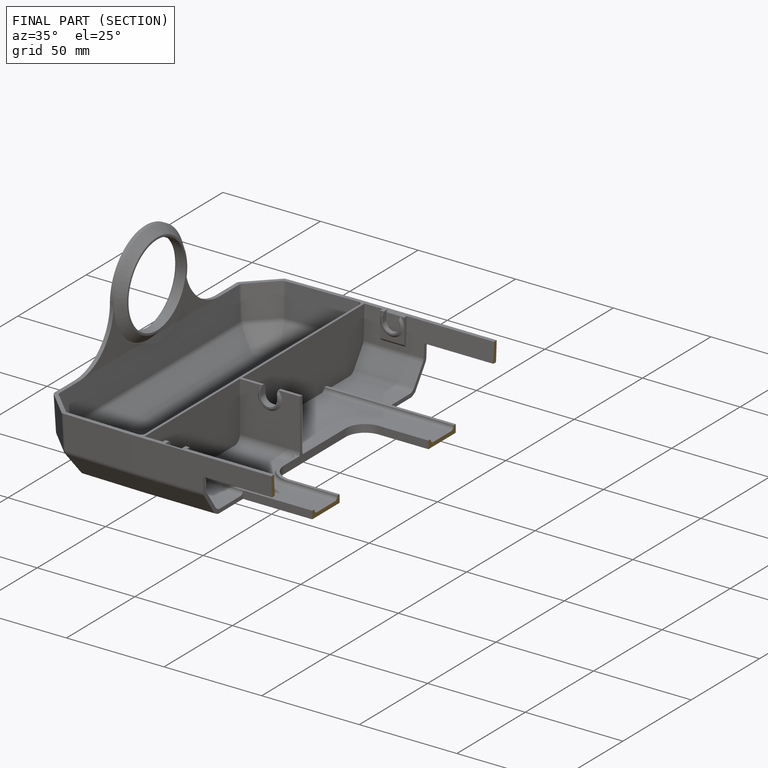
[diagram: finished part — half-section view (interior)]
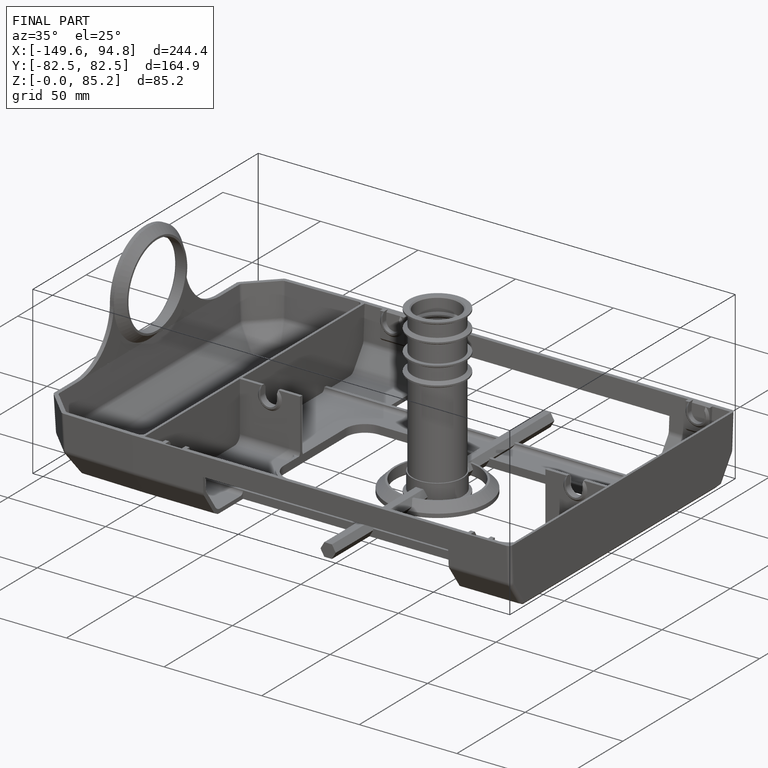
[diagram: finished part — iso view with bounding-box wireframe]
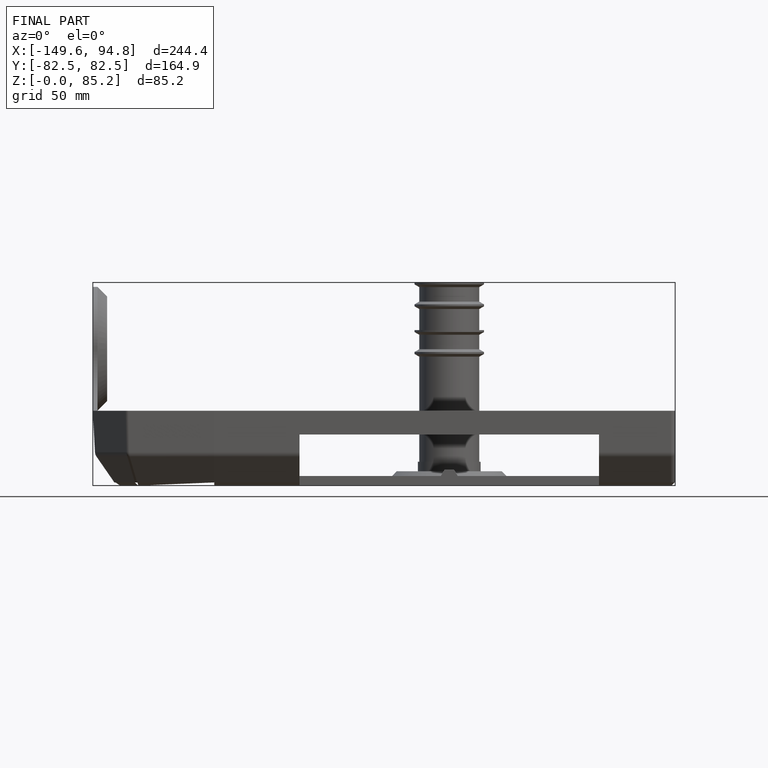
[diagram: finished part — front view with bounding-box wireframe]
